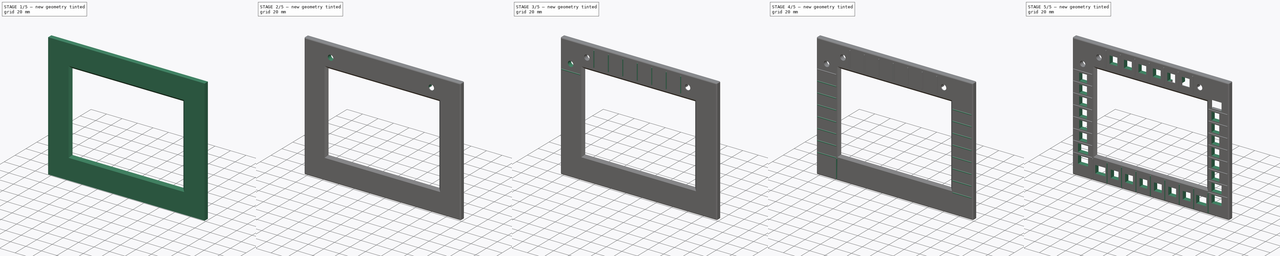
[diagram: build sequence overview — one tinted view per stage of 5, left to right]
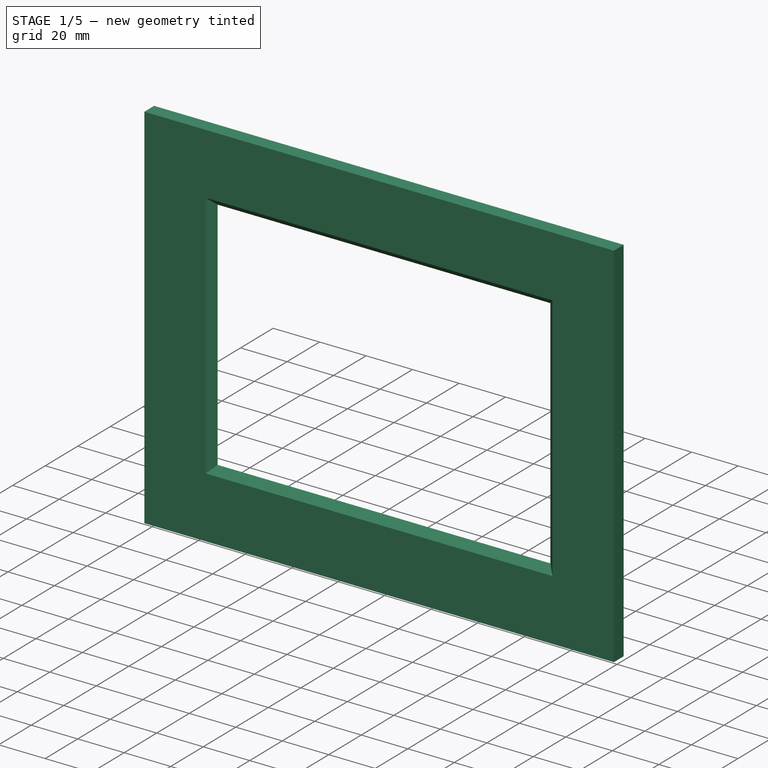
[diagram: stage 1 of 5 — iso view after this stage's code; geometry added in this stage tinted green]
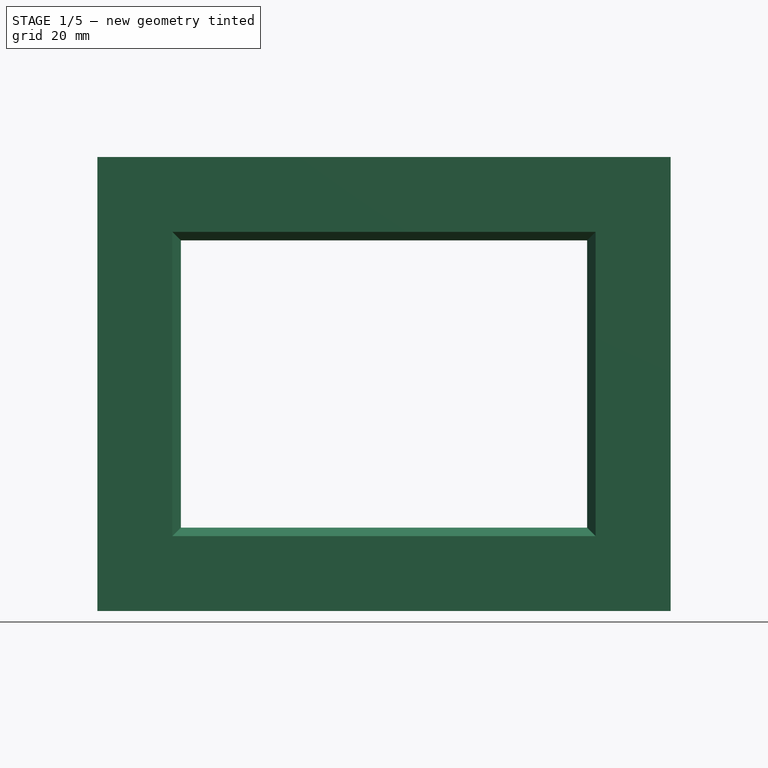
[diagram: stage 1 of 5 — front view after this stage's code; geometry added in this stage tinted green]
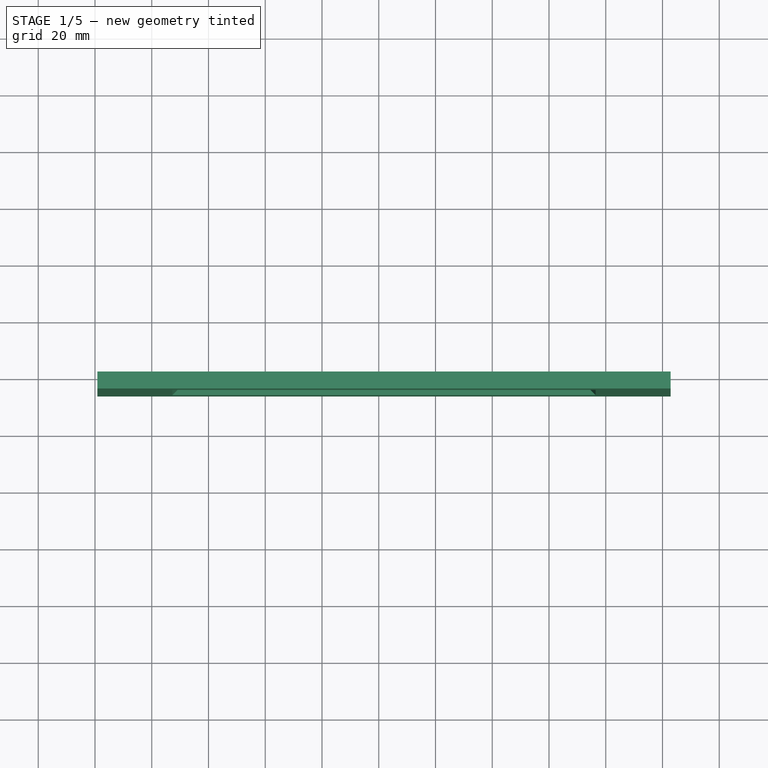
[diagram: stage 1 of 5 — top view after this stage's code; geometry added in this stage tinted green]
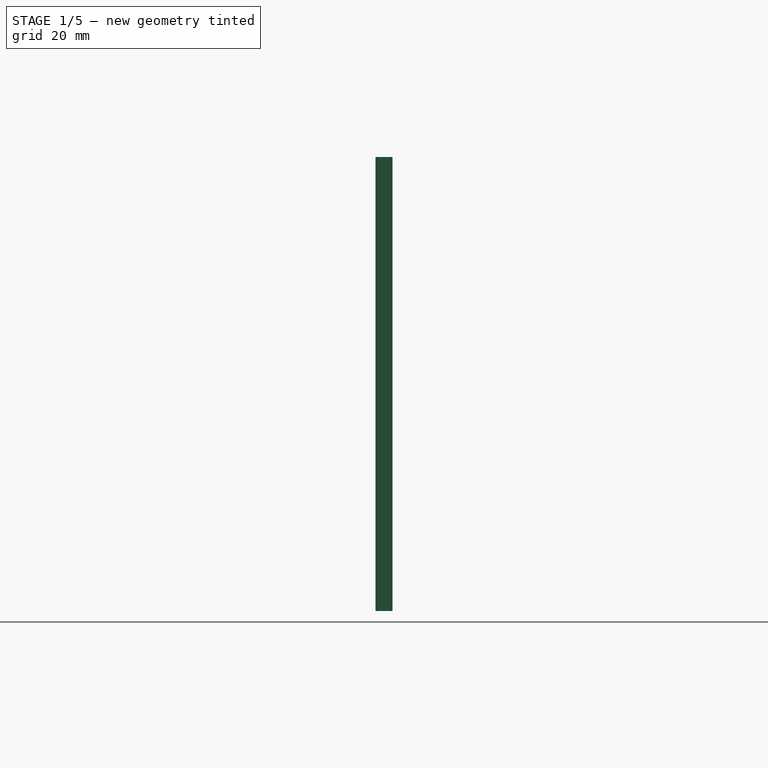
[diagram: stage 1 of 5 — right view after this stage's code; geometry added in this stage tinted green]
FCSTD DOCUMENT  (FreeCAD 0.21R33771 (Git))
Label: iteration2
License: All rights reserved
LicenseURL: http://en.wikipedia.org/wiki/All_rights_reserved
objects: Sketcher::SketchObject×16, PartDesign::Pocket×9, PartDesign::Fillet×6, PartDesign::Pad×5, PartDesign::LinearPattern×4, PartDesign::Hole×2, PartDesign::Chamfer×1, PartDesign::Mirrored×1, PartDesign::Body×1, App::MeasureDistance×1
note: 68 computed .brp shape members not serialized (recipe doc carries the construction recipe); baked Part::Feature solids carry a one-line shape summary decoded from their .brp

FEATURE [Sketcher::SketchObject] Sketch  label="bezel-front"
  FullyConstrained = true
  MapMode = 5
  Placement = pos=(0,0,0) rot=(1,0,0;1.5708rad)
  Support = -> [XZ_Plane]
  sketch-geometry (12):
    g0: LineSegment StartX=-69.1431 StartY=50.8022 StartZ=0 EndX=72.8569 EndY=50.8022 EndZ=0
    g1: LineSegment StartX=72.8569 StartY=50.8022 StartZ=0 EndX=72.8569 EndY=-49.1978 EndZ=0
    g2: LineSegment StartX=72.8569 StartY=-49.1978 StartZ=0 EndX=-69.1431 EndY=-49.1978 EndZ=0
    g3: LineSegment StartX=-69.1431 StartY=-49.1978 StartZ=0 EndX=-69.1431 EndY=50.8022 EndZ=0
    g4: LineSegment StartX=-99.1431 StartY=80.8022 StartZ=0 EndX=102.857 EndY=80.8022 EndZ=0
    g5: LineSegment StartX=102.857 StartY=80.8022 StartZ=0 EndX=102.857 EndY=-79.1978 EndZ=0
    g6: LineSegment StartX=102.857 StartY=-79.1978 StartZ=0 EndX=-99.1431 EndY=-79.1978 EndZ=0
    g7: LineSegment StartX=-99.1431 StartY=-79.1978 StartZ=0 EndX=-99.1431 EndY=80.8022 EndZ=0
    g8: LineSegment StartX=72.8569 StartY=8.66214 StartZ=0 EndX=102.857 EndY=8.66214 EndZ=0
    g9: LineSegment StartX=-69.1431 StartY=9.21008 StartZ=0 EndX=-99.1431 EndY=9.21008 EndZ=0
    g10: LineSegment StartX=1.95892 StartY=50.8022 StartZ=0 EndX=1.95892 EndY=80.8022 EndZ=0
    g11: LineSegment StartX=1.78155 StartY=-49.1978 StartZ=0 EndX=1.78155 EndY=-79.1978 EndZ=0
  constraints (40):
    c: Coincident(g0,g1)
    c: Coincident(g1,g2)
    c: Coincident(g2,g3)
    c: Coincident(g3,g0)
    c: Horizontal(g0)
    c: Horizontal(g2)
    c: Vertical(g1)
    c: Vertical(g3)
    c: DistanceX(g0,g0) = 142
    c: Distance(g-1,g0) = 85.8
    c: Distance(g-1,g0) = 88.82
    c: DistanceY(g1,g1) = 100
    c: Coincident(g4,g5)
    c: Coincident(g5,g6)
    c: Coincident(g6,g7)
    c: Coincident(g7,g4)
    c: Horizontal(g4)
    c: Horizontal(g6)
    c: Vertical(g5)
    c: Vertical(g7)
    c: PointOnObject(g8,g1)
    c: PointOnObject(g8,g5)
    c: Horizontal(g8)
    c: DistanceX(g8,g8) = 30
    c: PointOnObject(g9,g3)
    c: PointOnObject(g9,g7)
    c: Horizontal(g9)
    c: DistanceX(g9,g9) = 30
    c: PointOnObject(g10,g0)
    c: PointOnObject(g10,g4)
    c: Vertical(g10)
    c: PointOnObject(g11,g2)
    c: PointOnObject(g11,g6)
    c: Vertical(g11)
    c: DistanceY(g10,g10) = 30
    c: DistanceY(g11,g11) = 30
    c: Distance(g-1,g8) = 73.37
    c: Distance(g-1,g9) = 99.57
    c: Distance(g-1,g10) = 50.84
    c: Distance(g-1,g11) = 49.23
FEATURE [PartDesign::Pad] Pad  label="BezelFront"
  Direction = (0,-1,2e-16)
  Length = 6
  Length2 = 10
  Placement = pos=(0,0,0) rot=(1,0,0;1.5708rad)
  Profile = -> Sketch
  ReferenceAxis = -> Sketch [N_Axis]
  Type = 0
FEATURE [Sketcher::SketchObject] Sketch001  label="lcdinset"
  FullyConstrained = true
  MapMode = 5
  Placement = pos=(0,0,0) rot=(-1,0,0;1.5708rad)
  Support = -> [Pad]
  sketch-geometry (4):
    g0: LineSegment StartX=78 StartY=-59.5 StartZ=0 EndX=-78 EndY=-59.5 EndZ=0
    g1: LineSegment StartX=78 StartY=59.5 StartZ=0 EndX=78 EndY=-59.5 EndZ=0
    g2: LineSegment StartX=-78 StartY=-59.5 StartZ=0 EndX=-78 EndY=59.5 EndZ=0
    g3: LineSegment StartX=-78 StartY=59.5 StartZ=0 EndX=78 EndY=59.5 EndZ=0
  constraints (11):
    c: Coincident(g1,g0)
    c: Horizontal(g0)
    c: Vertical(g1)
    c: Symmetric(g0,g1,g-1)
    c: DistanceX(g0,g0) = 156
    c: Coincident(g2,g0)
    c: Vertical(g2)
    c: DistanceY(g2,g2) = 119
    c: Coincident(g3,g2)
    c: Coincident(g3,g1)
    c: Horizontal(g3)
FEATURE [Sketcher::SketchObject] Sketch002  label="lcdRibbonInset"
  FullyConstrained = true
  MapMode = 5
  Placement = pos=(0,0,0) rot=(-1,0,0;1.5708rad)
  sketch-geometry (5):
    g0: LineSegment StartX=25.97 StartY=-59.66 StartZ=0 EndX=65.97 EndY=-59.66 EndZ=0
    g1: LineSegment StartX=65.97 StartY=-59.66 StartZ=0 EndX=65.97 EndY=-64.66 EndZ=0
    g2: LineSegment StartX=65.97 StartY=-64.66 StartZ=0 EndX=25.97 EndY=-64.66 EndZ=0
    g3: LineSegment StartX=25.97 StartY=-64.66 StartZ=0 EndX=25.97 EndY=-59.66 EndZ=0
    g4: LineSegment StartX=77.97 StartY=-59.66 StartZ=0 EndX=65.97 EndY=-59.66 EndZ=0
  constraints (16):
    c: Coincident(g0,g1)
    c: Coincident(g1,g2)
    c: Coincident(g2,g3)
    c: Coincident(g3,g0)
    c: Horizontal(g0)
    c: Horizontal(g2)
    c: Vertical(g1)
    c: Vertical(g3)
    c: DistanceX(g2,g2) = 40
    c: DistanceY(g3,g3) = 5
    c: PointOnObject(g4,g0)
    c: Horizontal(g4)
    c: PointOnObject(g4,g1)
    c: DistanceX(g4,g4) = 12
    c: DistanceY(g-1,g4) = -59.66
    c: DistanceX(g-2,g0) = 65.97
FEATURE [Sketcher::SketchObject] Sketch003  label="backlightinset"
  FullyConstrained = true
  MapMode = 5
  Placement = pos=(0,0,0) rot=(-1,0,0;1.5708rad)
  sketch-geometry (4):
    g0: LineSegment StartX=78.03 StartY=-59.49 StartZ=0 EndX=92.03 EndY=-59.49 EndZ=0
    g1: LineSegment StartX=92.03 StartY=-59.49 StartZ=0 EndX=92.03 EndY=-44.49 EndZ=0
    g2: LineSegment StartX=92.03 StartY=-44.49 StartZ=0 EndX=78.03 EndY=-44.49 EndZ=0
    g3: LineSegment StartX=78.03 StartY=-44.49 StartZ=0 EndX=78.03 EndY=-59.49 EndZ=0
  constraints (12):
    c: Coincident(g0,g1)
    c: Coincident(g1,g2)
    c: Coincident(g2,g3)
    c: Coincident(g3,g0)
    c: Horizontal(g0)
    c: Horizontal(g2)
    c: Vertical(g1)
    c: Vertical(g3)
    c: DistanceY(g1,g1) = 15
    c: DistanceX(g0,g0) = 14
    c: DistanceX(g-2,g0) = 78.03
    c: DistanceY(g-1,g2) = -44.49
FEATURE [PartDesign::Pocket] Pocket  label="RibbonInset"
  BaseFeature = -> Pad
  Direction = (0,-1,2e-16)
  Length = 5
  Length2 = 5
  Placement = pos=(0,0,0) rot=(1,0,0;1.5708rad)
  Profile = -> Sketch002
  ReferenceAxis = -> Sketch002 [N_Axis]
  Type = 0
FEATURE [PartDesign::Pocket] Pocket001  label="BacklightInset"
  BaseFeature = -> Pocket
  Direction = (0,-1,2e-16)
  Length = 5
  Length2 = 5
  Placement = pos=(0,0,0) rot=(1,0,0;1.5708rad)
  Profile = -> Sketch003
  ReferenceAxis = -> Sketch003 [N_Axis]
  Type = 0
FEATURE [PartDesign::Chamfer] Chamfer
  Angle = 45
  Base = -> Pocket001 [Edge28,Edge27,Edge26,Edge25]
  BaseFeature = -> Pocket001
  ChamferType = 0
  FlipDirection = false
  Placement = pos=(0,0,0) rot=(1,0,0;1.5708rad)
  Size = 3.6
  Size2 = 1
  SupportTransform = false
  UseAllEdges = false
FEATURE [PartDesign::Pocket] Pocket002  label="LCDInset"
  BaseFeature = -> Chamfer
  Direction = (0,-1,4e-16)
  Length = 3
  Length2 = 5
  Placement = pos=(0,0,0) rot=(1,0,0;1.5708rad)
  Profile = -> Sketch001
  ReferenceAxis = -> Sketch001 [N_Axis]
  Type = 0
FEATURE [Sketcher::SketchObject] Sketch004
  FullyConstrained = true
  MapMode = 5
  Placement = pos=(0,3.3e-14,59.5) rot=(1,0,0;3.14159rad)
  Support = -> [Pocket002]
  sketch-geometry (4):
    g0: LineSegment StartX=26.17 StartY=3.89 StartZ=0 EndX=65.93 EndY=3.89 EndZ=0
    g1: LineSegment StartX=65.93 StartY=3.89 StartZ=0 EndX=65.93 EndY=0 EndZ=0
    g2: LineSegment StartX=65.93 StartY=0 StartZ=0 EndX=26.17 EndY=0 EndZ=0
    g3: LineSegment StartX=26.17 StartY=0 StartZ=0 EndX=26.17 EndY=3.89 EndZ=0
  constraints (12):
    c: Coincident(g0,g1)
    c: Coincident(g1,g2)
    c: Coincident(g2,g3)
    c: Coincident(g3,g0)
    c: Horizontal(g0)
    c: Horizontal(g2)
    c: Vertical(g1)
    c: Vertical(g3)
    c: PointOnObject(g1,g-1)
    c: DistanceX(g-2,g1) = 65.93
    c: DistanceX(g2,g2) = 39.76
    c: DistanceY(g3,g3) = 3.89
FEATURE [PartDesign::Pocket] Pocket003  label="cable-fix"
  BaseFeature = -> Pocket002
  Direction = (0,6e-16,1)
  Length = 1
  Length2 = 5
  Placement = pos=(0,0,0) rot=(1,0,0;1.5708rad)
  Profile = -> Sketch004
  ReferenceAxis = -> Sketch004 [N_Axis]
  Type = 0
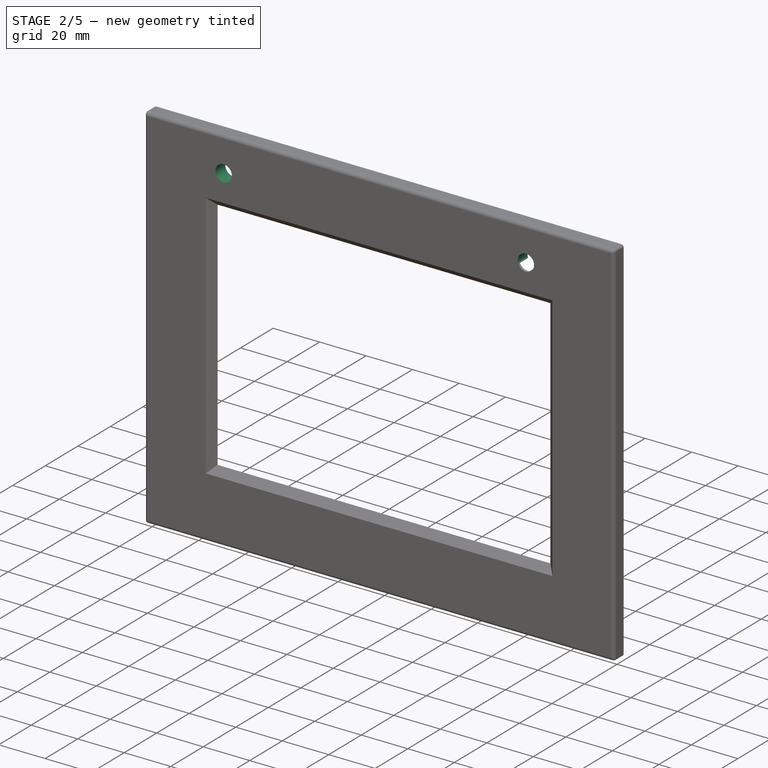
[diagram: stage 2 of 5 — iso view after this stage's code; geometry added in this stage tinted green]
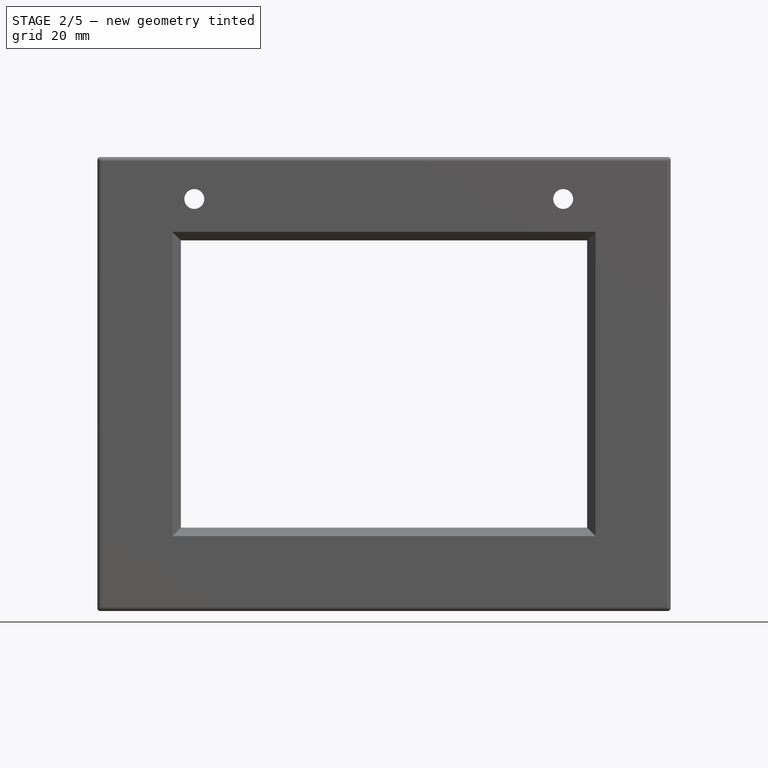
[diagram: stage 2 of 5 — front view after this stage's code; geometry added in this stage tinted green]
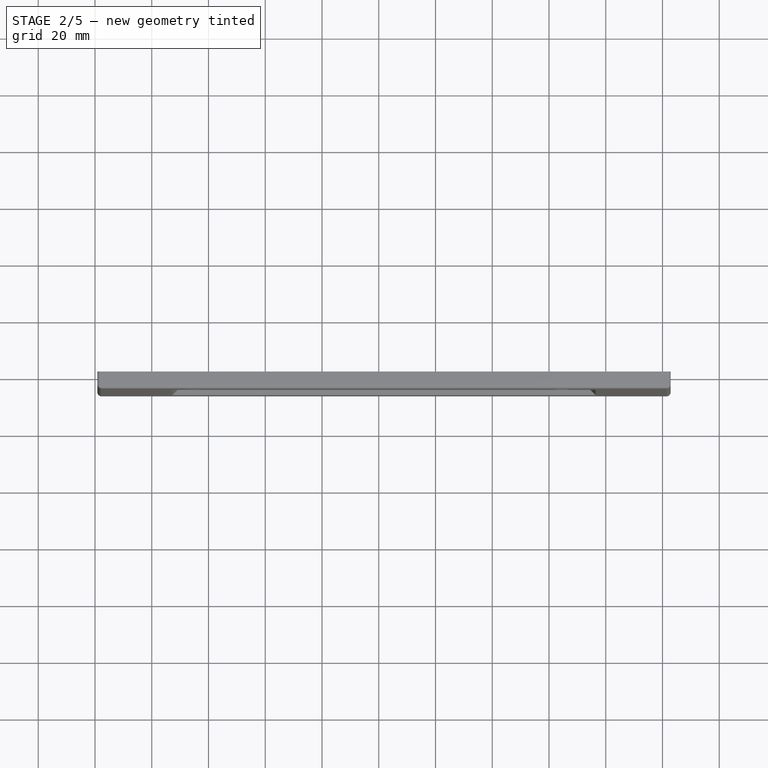
[diagram: stage 2 of 5 — top view after this stage's code; geometry added in this stage tinted green]
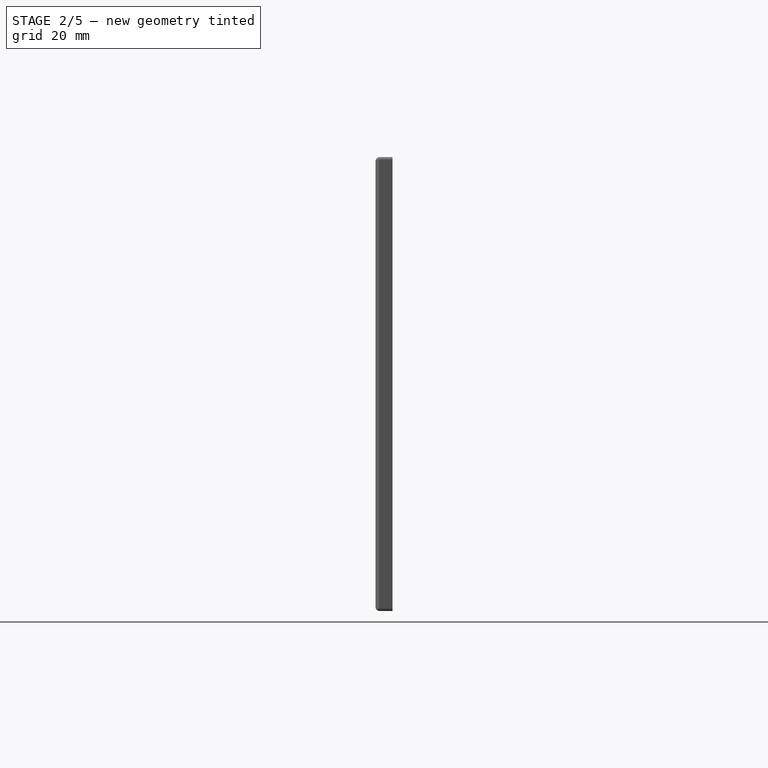
[diagram: stage 2 of 5 — right view after this stage's code; geometry added in this stage tinted green]
FEATURE [Sketcher::SketchObject] Sketch005
  FullyConstrained = true
  MapMode = 5
  Placement = pos=(78,0,0) rot=(0.707107,0,-0.707107;3.14159rad)
  Support = -> [Pocket003]
  sketch-geometry (4):
    g0: LineSegment StartX=-44.47 StartY=3 StartZ=0 EndX=-59.47 EndY=3 EndZ=0
    g1: LineSegment StartX=-59.47 StartY=3 StartZ=0 EndX=-59.47 EndY=0 EndZ=0
    g2: LineSegment StartX=-59.47 StartY=0 StartZ=0 EndX=-44.47 EndY=0 EndZ=0
    g3: LineSegment StartX=-44.47 StartY=0 StartZ=0 EndX=-44.47 EndY=3 EndZ=0
  constraints (12):
    c: Coincident(g0,g1)
    c: Coincident(g1,g2)
    c: Coincident(g2,g3)
    c: Coincident(g3,g0)
    c: Horizontal(g0)
    c: Horizontal(g2)
    c: Vertical(g1)
    c: Vertical(g3)
    c: PointOnObject(g1,g-1)
    c: DistanceY(g3,g3) = 3
    c: DistanceX(g2,g2) = 15
    c: DistanceX(g-2,g2) = -44.47
FEATURE [PartDesign::Pocket] Pocket004  label="cable-fix001"
  BaseFeature = -> Pocket003
  Direction = (1,0,2e-16)
  Length = 1
  Length2 = 5
  Placement = pos=(0,0,0) rot=(1,0,0;1.5708rad)
  Profile = -> Sketch005
  ReferenceAxis = -> Sketch005 [N_Axis]
  Type = 0
FEATURE [PartDesign::Fillet] Fillet
  Base = -> Pocket004 [Edge8,Edge6,Edge5,Edge7]
  BaseFeature = -> Pocket004
  Placement = pos=(0,0,0) rot=(1,0,0;1.5708rad)
  Radius = 1.5
  SupportTransform = false
  UseAllEdges = false
FEATURE [PartDesign::Fillet] Fillet001
  Base = -> Fillet [Edge31,Edge28,Edge25,Edge27]
  BaseFeature = -> Fillet
  Placement = pos=(0,0,0) rot=(1,0,0;1.5708rad)
  Radius = 1
  SupportTransform = false
  UseAllEdges = false
FEATURE [Sketcher::SketchObject] Sketch006  label="knob1"
  FullyConstrained = true
  MapMode = 5
  Placement = pos=(0,-6,4.7e-15) rot=(1,0,0;1.5708rad)
  Support = -> [Fillet001]
  sketch-geometry (1):
    g0: Circle CenterX=-65 CenterY=66 CenterZ=0 NormalX=0 NormalY=0 NormalZ=1 AngleXU=0 Radius=1.5
  constraints (3):
    c: DistanceY(g-1,g0) = 66
    c: DistanceX(g-2,g0) = -65
    c: Diameter(g0) = 3
FEATURE [PartDesign::Hole] Hole  label="POT1"
  BaseFeature = -> Fillet001
  CustomThreadClearance = 0
  Depth = 25
  DepthType = 0
  Diameter = 7
  DrillForDepth = false
  DrillPoint = 1
  DrillPointAngle = 118
  HoleCutCountersinkAngle = 90
  HoleCutCustomValues = false
  HoleCutDepth = 0
  HoleCutDiameter = 6.1
  HoleCutType = 0
  ModelThread = false
  Placement = pos=(0,0,0) rot=(1,0,0;1.5708rad)
  Profile = -> Sketch006
  Tapered = false
  TaperedAngle = 90
  ThreadClass = 0
  ThreadDepth = 25
  ThreadDepthType = 0
  ThreadDirection = 0
  ThreadFit = 0
  ThreadSize = 0
  ThreadType = 0
  Threaded = false
  UseCustomThreadClearance = false
FEATURE [PartDesign::Mirrored] Mirrored  label="POT2"
  BaseFeature = -> Hole
  MirrorPlane = -> Sketch006 [V_Axis]
  Originals = -> [Hole]
  Placement = pos=(0,0,0) rot=(1,0,0;1.5708rad)
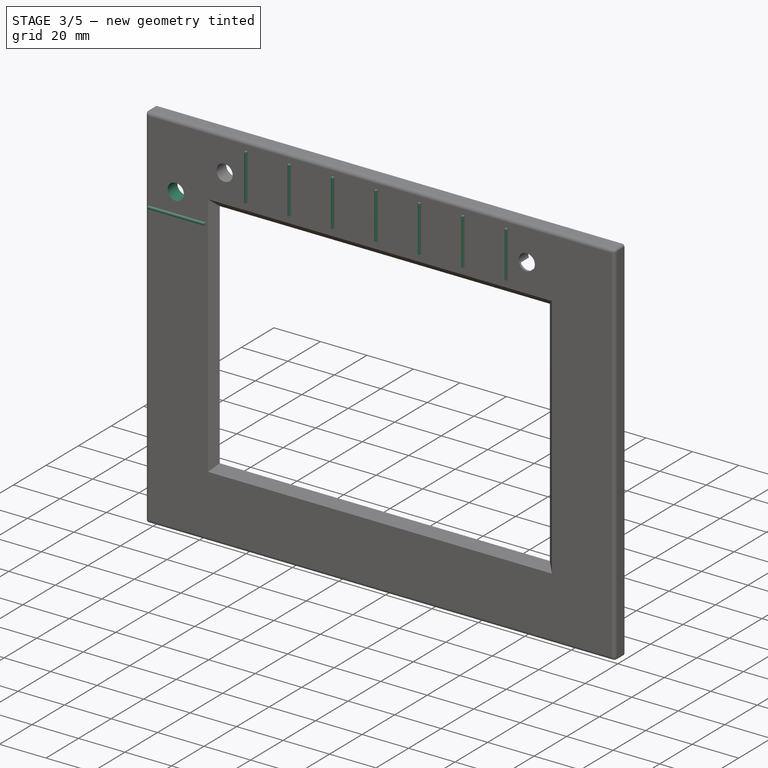
[diagram: stage 3 of 5 — iso view after this stage's code; geometry added in this stage tinted green]
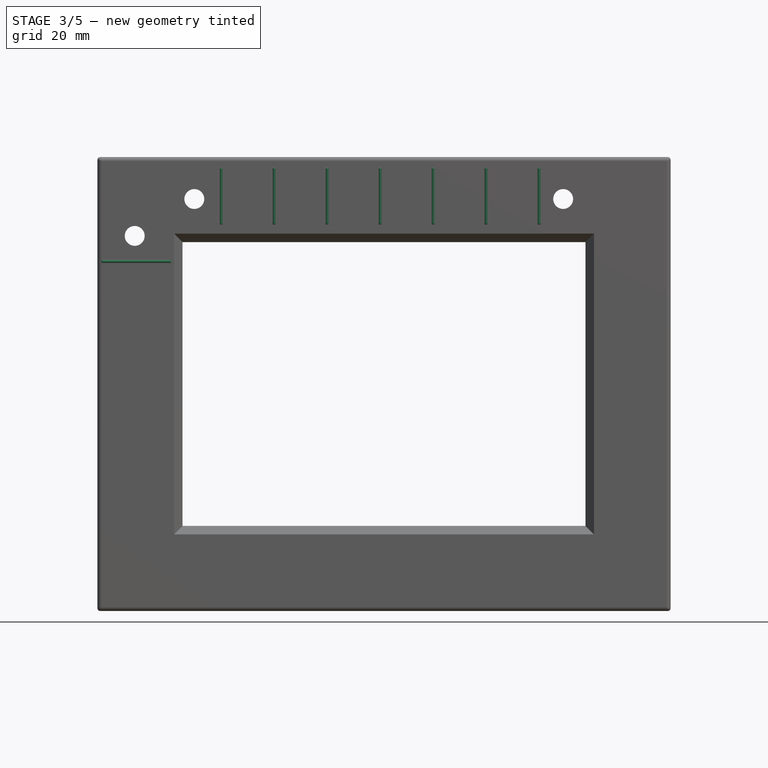
[diagram: stage 3 of 5 — front view after this stage's code; geometry added in this stage tinted green]
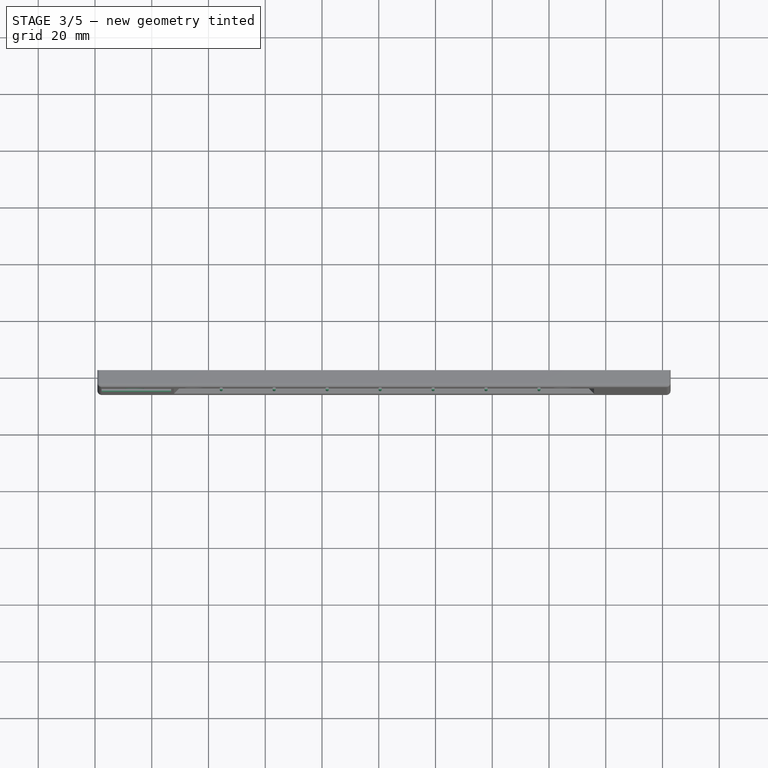
[diagram: stage 3 of 5 — top view after this stage's code; geometry added in this stage tinted green]
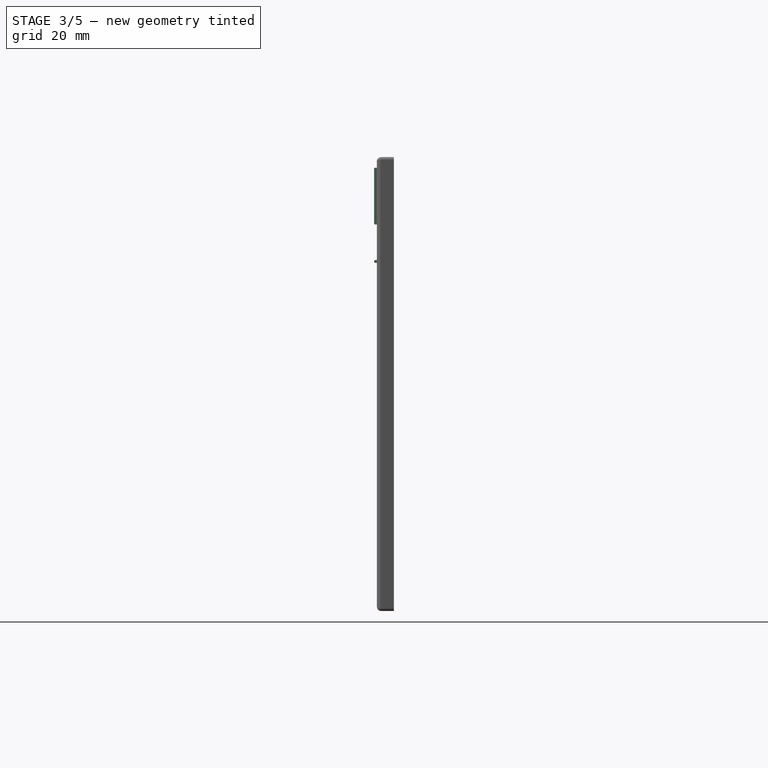
[diagram: stage 3 of 5 — right view after this stage's code; geometry added in this stage tinted green]
FEATURE [Sketcher::SketchObject] Sketch007  label="nubbin"
  FullyConstrained = true
  MapMode = 5
  Placement = pos=(0,-6,5.3e-15) rot=(1,0,0;1.5708rad)
  Support = -> [Mirrored]
  sketch-geometry (4):
    g0: LineSegment StartX=-56 StartY=77 StartZ=0 EndX=-55 EndY=77 EndZ=0
    g1: LineSegment StartX=-55 StartY=77 StartZ=0 EndX=-55 EndY=57 EndZ=0
    g2: LineSegment StartX=-55 StartY=57 StartZ=0 EndX=-56 EndY=57 EndZ=0
    g3: LineSegment StartX=-56 StartY=57 StartZ=0 EndX=-56 EndY=77 EndZ=0
  constraints (12):
    c: Coincident(g0,g1)
    c: Coincident(g1,g2)
    c: Coincident(g2,g3)
    c: Coincident(g3,g0)
    c: Horizontal(g0)
    c: Horizontal(g2)
    c: Vertical(g1)
    c: Vertical(g3)
    c: DistanceY(g3,g3) = 20
    c: DistanceX(g-2,g1) = -55
    c: DistanceX(g2,g2) = 1
    c: DistanceY(g-1,g1) = 57
FEATURE [PartDesign::Pad] Pad001  label="Nubbn"
  BaseFeature = -> Mirrored
  Direction = (0,-1,7e-16)
  Length = 1
  Length2 = 10
  Placement = pos=(0,0,0) rot=(1,0,0;1.5708rad)
  Profile = -> Sketch007
  ReferenceAxis = -> Sketch007 [N_Axis]
  Type = 0
FEATURE [PartDesign::Fillet] Fillet002  label="RoundingNubbin"
  Base = -> Pad001 [Edge71,Edge74,Edge69,Edge73]
  BaseFeature = -> Pad001
  Placement = pos=(0,0,0) rot=(1,0,0;1.5708rad)
  Radius = 0.4
  SupportTransform = false
  UseAllEdges = false
FEATURE [PartDesign::LinearPattern] LinearPattern  label="Top Row Nubbns"
  BaseFeature = -> Fillet002
  Direction = -> X_Axis
  Length = 112
  Occurrences = 7
  Originals = -> [Pad001,Fillet002]
  Placement = pos=(0,0,0) rot=(1,0,0;1.5708rad)
FEATURE [Sketcher::SketchObject] Sketch008  label="pot-top-left"
  FullyConstrained = true
  MapMode = 5
  Placement = pos=(0,-6,6e-15) rot=(1,0,0;1.5708rad)
  Support = -> [LinearPattern]
  sketch-geometry (1):
    g0: Circle CenterX=-86 CenterY=53 CenterZ=0 NormalX=0 NormalY=0 NormalZ=1 AngleXU=0 Radius=3.5
  constraints (3):
    c: Diameter(g0) = 7
    c: DistanceX(g-2,g0) = -86
    c: DistanceY(g-1,g0) = 53
FEATURE [PartDesign::Hole] Hole001  label="POT-Top Left"
  BaseFeature = -> LinearPattern
  CustomThreadClearance = 0
  Depth = 25
  DepthType = 0
  Diameter = 7
  DrillForDepth = false
  DrillPoint = 1
  DrillPointAngle = 118
  HoleCutCountersinkAngle = 90
  HoleCutCustomValues = false
  HoleCutDepth = 0
  HoleCutDiameter = 6.1
  HoleCutType = 0
  ModelThread = false
  Placement = pos=(0,0,0) rot=(1,0,0;1.5708rad)
  Profile = -> Sketch008
  Tapered = false
  TaperedAngle = 90
  ThreadClass = 0
  ThreadDepth = 25
  ThreadDepthType = 0
  ThreadDirection = 0
  ThreadFit = 0
  ThreadSize = 0
  ThreadType = 0
  Threaded = false
  UseCustomThreadClearance = false
FEATURE [Sketcher::SketchObject] Sketch009  label="side-nubbins"
  FullyConstrained = true
  MapMode = 5
  Placement = pos=(0,-6,6.6e-15) rot=(1,0,0;1.5708rad)
  Support = -> [Hole001]
  sketch-geometry (4):
    g0: LineSegment StartX=-97.65 StartY=44.5 StartZ=0 EndX=-73.15 EndY=44.5 EndZ=0
    g1: LineSegment StartX=-73.15 StartY=44.5 StartZ=0 EndX=-73.15 EndY=43.5 EndZ=0
    g2: LineSegment StartX=-73.15 StartY=43.5 StartZ=0 EndX=-97.65 EndY=43.5 EndZ=0
    g3: LineSegment StartX=-97.65 StartY=43.5 StartZ=0 EndX=-97.65 EndY=44.5 EndZ=0
  constraints (12):
    c: Coincident(g0,g1)
    c: Coincident(g1,g2)
    c: Coincident(g2,g3)
    c: Coincident(g3,g0)
    c: Horizontal(g0)
    c: Horizontal(g2)
    c: Vertical(g1)
    c: Vertical(g3)
    c: DistanceX(g2,g2) = 24.5
    c: DistanceY(g1,g1) = 1
    c: DistanceX(g-2,g1) = -73.15
    c: DistanceY(g-1,g0) = 44.5
FEATURE [PartDesign::Pad] Pad002  label="SideNubbin"
  BaseFeature = -> Hole001
  Direction = (0,-1,1.1e-15)
  Length = 1
  Length2 = 10
  Placement = pos=(0,0,0) rot=(1,0,0;1.5708rad)
  Profile = -> Sketch009
  ReferenceAxis = -> Sketch009 [N_Axis]
  Type = 0
FEATURE [PartDesign::Fillet] Fillet003  label="SideNubbnRounding"
  Base = -> Pad002 [Edge76,Edge81,Edge169,Edge78]
  BaseFeature = -> Pad002
  Placement = pos=(0,0,0) rot=(1,0,0;1.5708rad)
  Radius = 0.4
  SupportTransform = false
  UseAllEdges = false
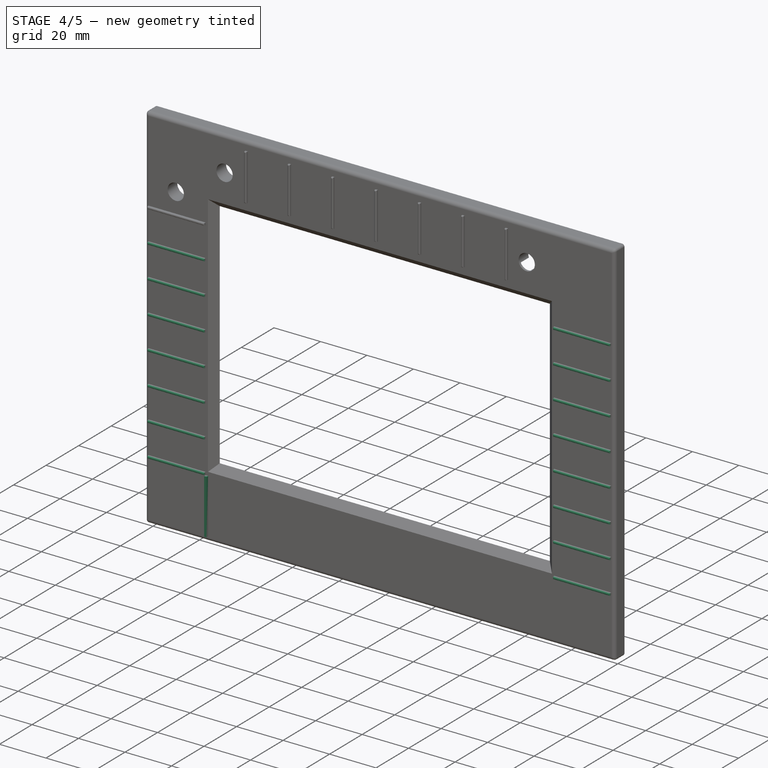
[diagram: stage 4 of 5 — iso view after this stage's code; geometry added in this stage tinted green]
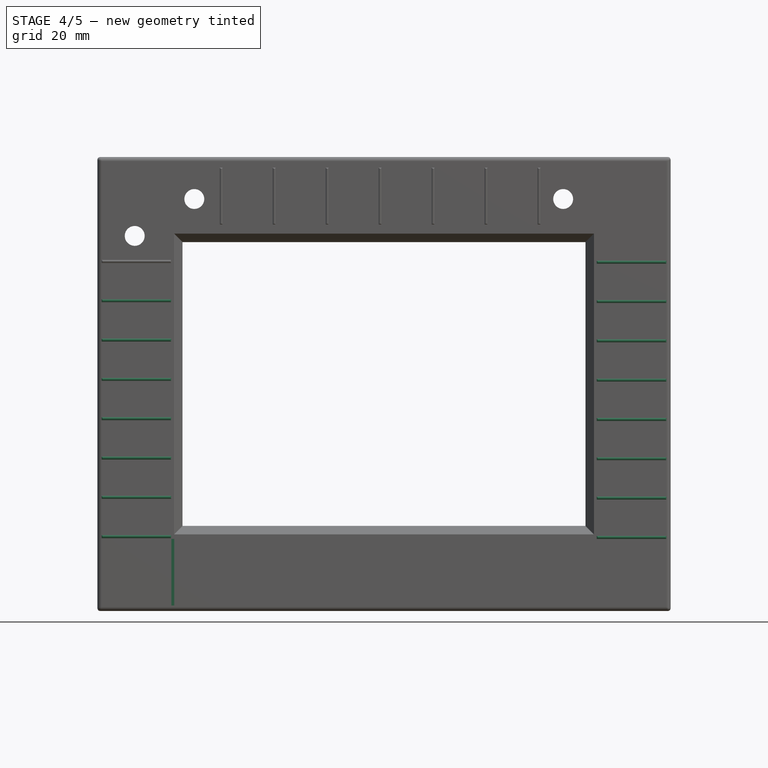
[diagram: stage 4 of 5 — front view after this stage's code; geometry added in this stage tinted green]
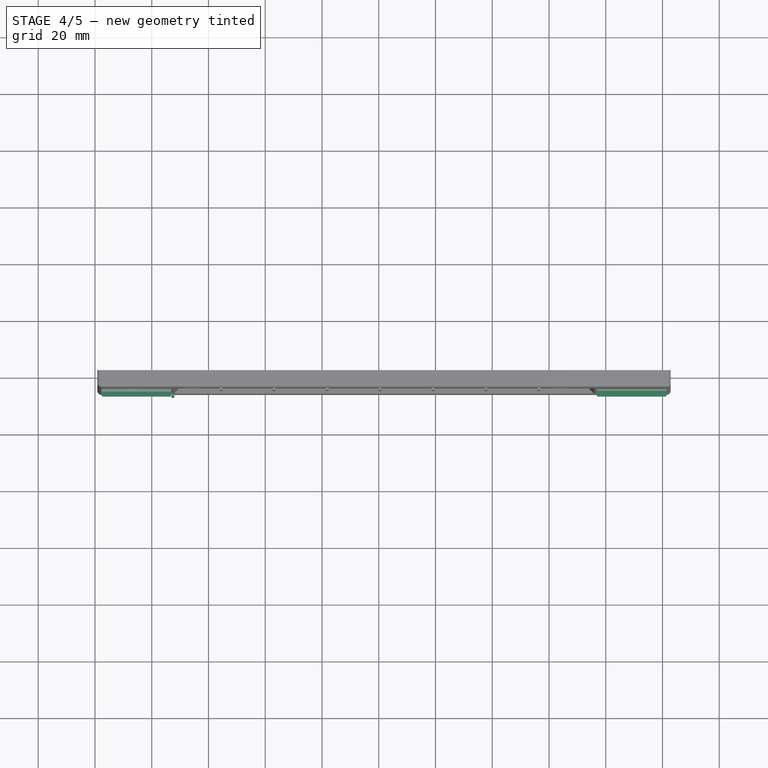
[diagram: stage 4 of 5 — top view after this stage's code; geometry added in this stage tinted green]
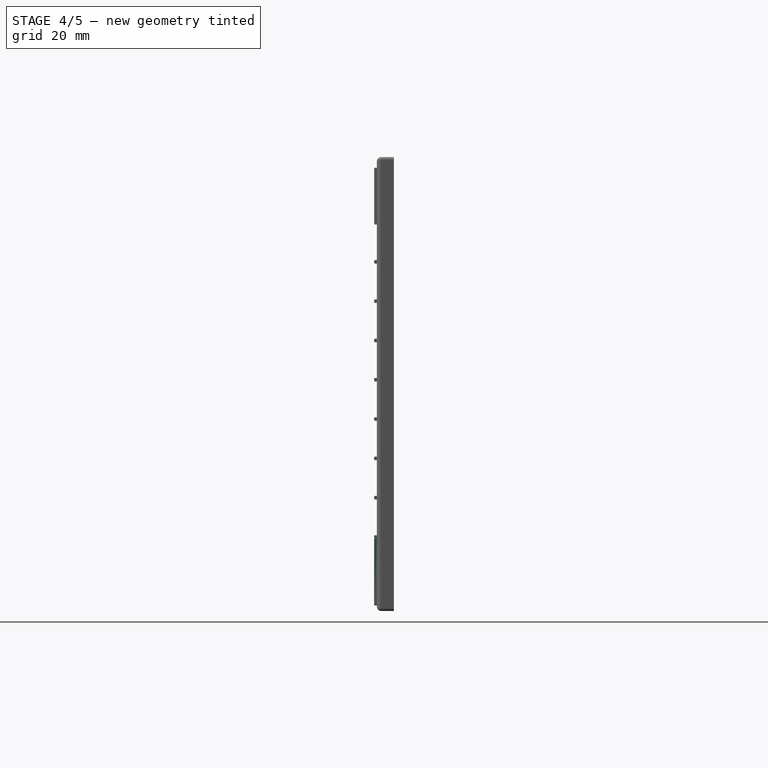
[diagram: stage 4 of 5 — right view after this stage's code; geometry added in this stage tinted green]
FEATURE [PartDesign::LinearPattern] LinearPattern001  label="SideNubbinLinear"
  BaseFeature = -> Fillet003
  Direction = -> Sketch009 [V_Axis]
  Length = 97
  Occurrences = 8
  Originals = -> [Pad002,Fillet003]
  Placement = pos=(0,0,0) rot=(1,0,0;1.5708rad)
  Reversed = true
FEATURE [Sketcher::SketchObject] Sketch010  label="r-side-nubbn"
  FullyConstrained = true
  MapMode = 5
  Placement = pos=(0,-6,7.3e-15) rot=(1,0,0;1.5708rad)
  Support = -> [LinearPattern001]
  sketch-geometry (4):
    g0: LineSegment StartX=76.86 StartY=43.24 StartZ=0 EndX=101.36 EndY=43.24 EndZ=0
    g1: LineSegment StartX=101.36 StartY=43.24 StartZ=0 EndX=101.36 EndY=44.24 EndZ=0
    g2: LineSegment StartX=101.36 StartY=44.24 StartZ=0 EndX=76.86 EndY=44.24 EndZ=0
    g3: LineSegment StartX=76.86 StartY=44.24 StartZ=0 EndX=76.86 EndY=43.24 EndZ=0
  constraints (12):
    c: Coincident(g0,g1)
    c: Coincident(g1,g2)
    c: Coincident(g2,g3)
    c: Coincident(g3,g0)
    c: Horizontal(g0)
    c: Horizontal(g2)
    c: Vertical(g1)
    c: Vertical(g3)
    c: DistanceX(g0,g0) = 24.5
    c: DistanceY(g1,g1) = 1
    c: DistanceY(g-1,g0) = 43.24
    c: DistanceX(g-2,g2) = 76.86
FEATURE [PartDesign::Pad] Pad003  label="R-Side Nubbn"
  BaseFeature = -> LinearPattern001
  Direction = (0,-1,1.1e-15)
  Length = 1
  Length2 = 10
  Placement = pos=(0,0,0) rot=(1,0,0;1.5708rad)
  Profile = -> Sketch010
  ReferenceAxis = -> Sketch010 [N_Axis]
  Type = 0
FEATURE [PartDesign::Fillet] Fillet004  label="R-Side Nubbin Rounding"
  Base = -> Pad003 [Edge182,Edge187,Edge346,Edge184]
  BaseFeature = -> Pad003
  Placement = pos=(0,0,0) rot=(1,0,0;1.5708rad)
  Radius = 0.4
  SupportTransform = false
  UseAllEdges = false
FEATURE [PartDesign::LinearPattern] LinearPattern002  label="R-Side Pattern"
  BaseFeature = -> Fillet004
  Direction = -> Sketch010 [V_Axis]
  Length = 97
  Occurrences = 8
  Originals = -> [Pad003,Fillet004]
  Placement = pos=(0,0,0) rot=(1,0,0;1.5708rad)
  Reversed = true
FEATURE [Sketcher::SketchObject] Sketch011  label="bottom-nubbins"
  FullyConstrained = true
  MapMode = 5
  Placement = pos=(0,-6,8e-15) rot=(1,0,0;1.5708rad)
  Support = -> [LinearPattern002]
  sketch-geometry (4):
    g0: LineSegment StartX=-73.07 StartY=-53.76 StartZ=0 EndX=-72.07 EndY=-53.76 EndZ=0
    g1: LineSegment StartX=-72.07 StartY=-53.76 StartZ=0 EndX=-72.07 EndY=-77.26 EndZ=0
    g2: LineSegment StartX=-72.07 StartY=-77.26 StartZ=0 EndX=-73.07 EndY=-77.26 EndZ=0
    g3: LineSegment StartX=-73.07 StartY=-77.26 StartZ=0 EndX=-73.07 EndY=-53.76 EndZ=0
  constraints (12):
    c: Coincident(g0,g1)
    c: Coincident(g1,g2)
    c: Coincident(g2,g3)
    c: Coincident(g3,g0)
    c: Horizontal(g0)
    c: Horizontal(g2)
    c: Vertical(g1)
    c: Vertical(g3)
    c: DistanceX(g2,g2) = 1
    c: DistanceY(g1,g1) = 23.5
    c: DistanceX(g-2,g1) = -72.07
    c: DistanceY(g-1,g0) = -53.76
FEATURE [PartDesign::Pad] Pad004  label="BottomNubbins"
  BaseFeature = -> LinearPattern002
  Direction = (0,-1,1.4e-15)
  Length = 1
  Length2 = 10
  Placement = pos=(0,0,0) rot=(1,0,0;1.5708rad)
  Profile = -> Sketch011
  ReferenceAxis = -> Sketch011 [N_Axis]
  Type = 0
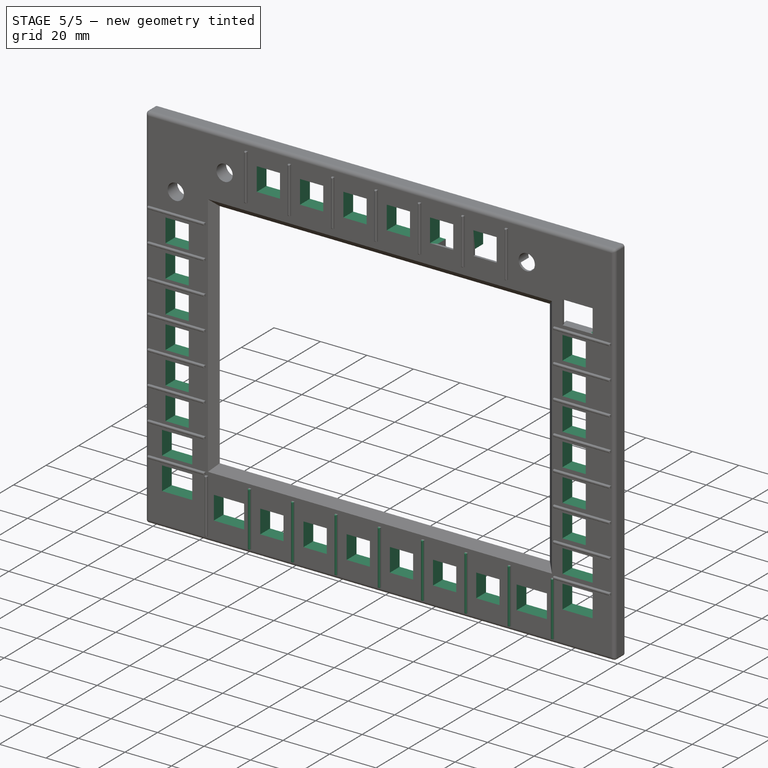
[diagram: stage 5 of 5 — iso view after this stage's code; geometry added in this stage tinted green]
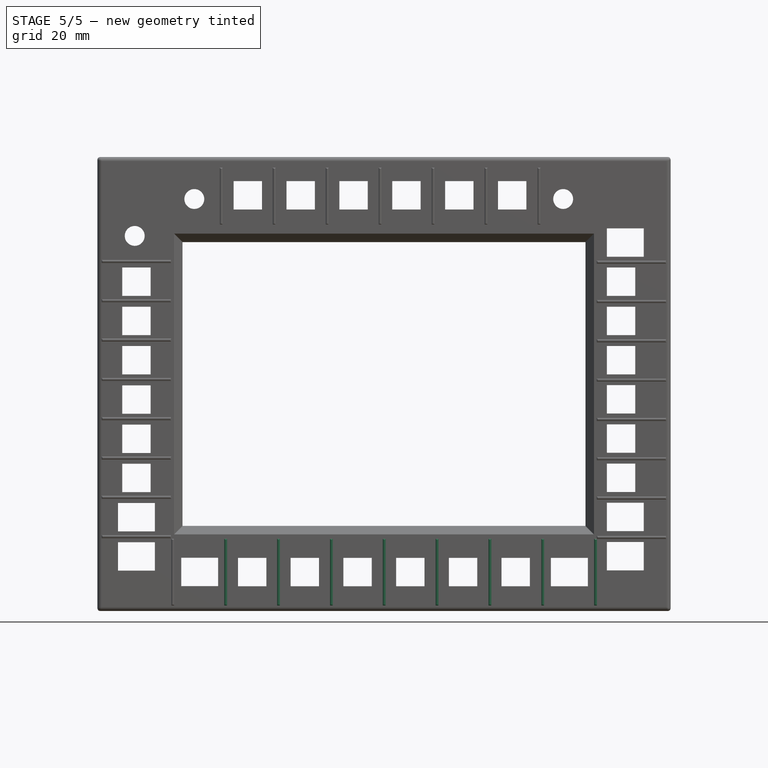
[diagram: stage 5 of 5 — front view after this stage's code; geometry added in this stage tinted green]
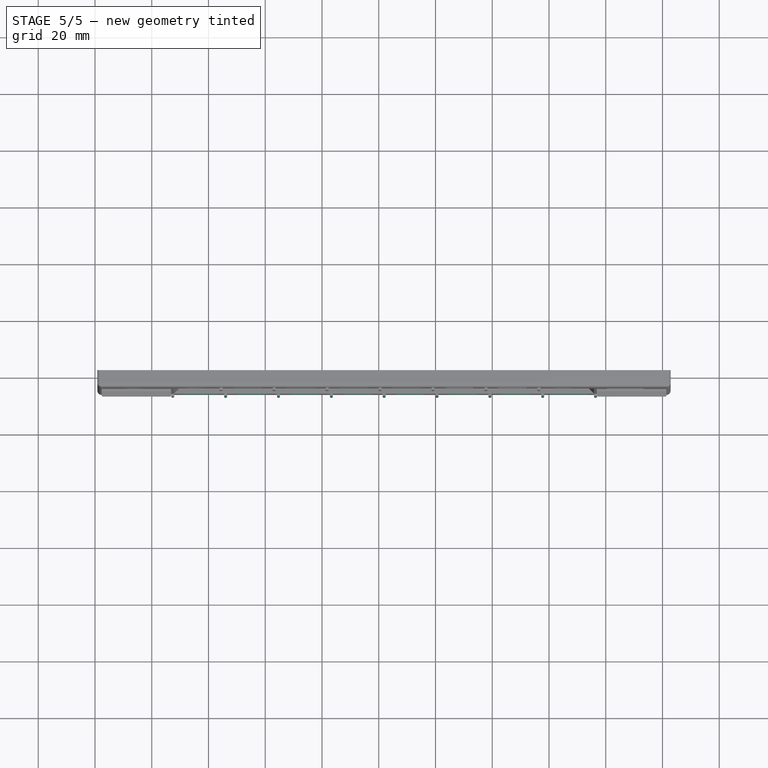
[diagram: stage 5 of 5 — top view after this stage's code; geometry added in this stage tinted green]
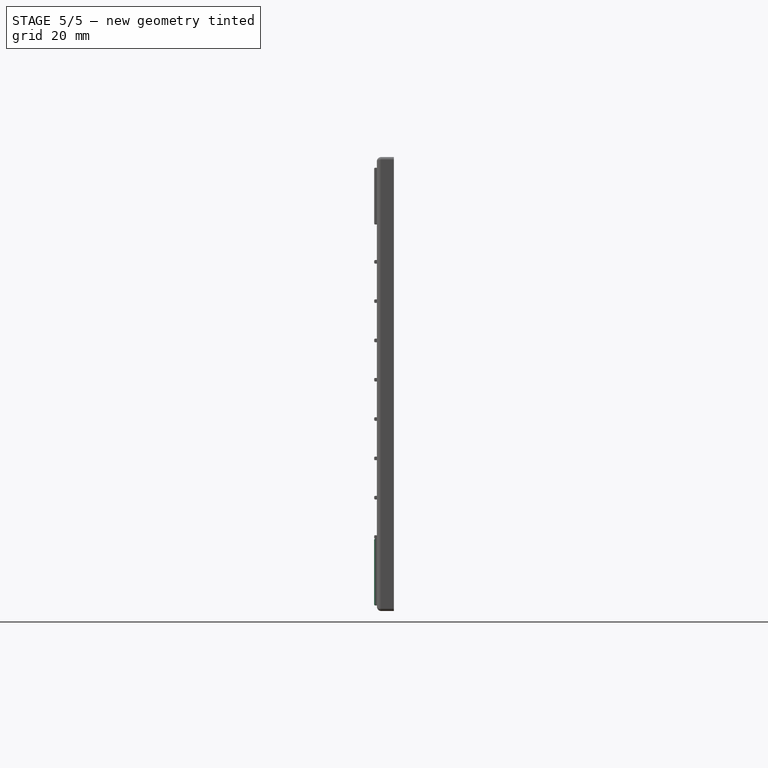
[diagram: stage 5 of 5 — right view after this stage's code; geometry added in this stage tinted green]
FEATURE [PartDesign::Fillet] Fillet005  label="Bottom Nubbins Rounding"
  Base = -> Pad004 [Edge297,Edge294,Edge292,Edge296]
  BaseFeature = -> Pad004
  Placement = pos=(0,0,0) rot=(1,0,0;1.5708rad)
  Radius = 0.4
  SupportTransform = false
  UseAllEdges = false
FEATURE [PartDesign::LinearPattern] LinearPattern003  label="BottomNubbins Pattern"
  BaseFeature = -> Fillet005
  Direction = -> X_Axis
  Length = 149
  Occurrences = 9
  Originals = -> [Pad004,Fillet005]
  Placement = pos=(0,0,0) rot=(1,0,0;1.5708rad)
FEATURE [Sketcher::SketchObject] Sketch012  label="bottom tsd a/c but"
  FullyConstrained = true
  MapMode = 5
  Placement = pos=(0,-6,8.6e-15) rot=(1,0,0;1.5708rad)
  Support = -> [LinearPattern003]
  sketch-geometry (4):
    g0: LineSegment StartX=-69.6 StartY=-60.45 StartZ=0 EndX=-56.6 EndY=-60.45 EndZ=0
    g1: LineSegment StartX=-56.6 StartY=-60.45 StartZ=0 EndX=-56.6 EndY=-70.45 EndZ=0
    g2: LineSegment StartX=-56.6 StartY=-70.45 StartZ=0 EndX=-69.6 EndY=-70.45 EndZ=0
    g3: LineSegment StartX=-69.6 StartY=-70.45 StartZ=0 EndX=-69.6 EndY=-60.45 EndZ=0
  constraints (12):
    c: Coincident(g0,g1)
    c: Coincident(g1,g2)
    c: Coincident(g2,g3)
    c: Coincident(g3,g0)
    c: Horizontal(g0)
    c: Horizontal(g2)
    c: Vertical(g1)
    c: Vertical(g3)
    c: DistanceX(g2,g2) = 13
    c: DistanceY(g1,g1) = 10
    c: DistanceX(g-2,g1) = -56.6
    c: DistanceY(g-1,g0) = -60.45
FEATURE [PartDesign::Pocket] Pocket005  label="TSC A/C But Bot"
  BaseFeature = -> LinearPattern003
  Direction = (0,1,-1.4e-15)
  Length = 5
  Length2 = 5
  Placement = pos=(0,0,0) rot=(1,0,0;1.5708rad)
  Profile = -> Sketch012
  ReferenceAxis = -> Sketch012 [N_Axis]
  Type = 1
FEATURE [Sketcher::SketchObject] Sketch013  label="bottom buts"
  FullyConstrained = false
  MapMode = 5
  Placement = pos=(0,-6,9.3e-15) rot=(1,0,0;1.5708rad)
  Support = -> [Pocket005]
  sketch-geometry (29):
    g0: LineSegment StartX=-49.61 StartY=-60.47 StartZ=0 EndX=-39.61 EndY=-60.47 EndZ=0
    g1: LineSegment StartX=-39.61 StartY=-60.47 StartZ=0 EndX=-39.61 EndY=-70.47 EndZ=0
    g2: LineSegment StartX=-39.61 StartY=-70.47 StartZ=0 EndX=-49.61 EndY=-70.47 EndZ=0
    g3: LineSegment StartX=-49.61 StartY=-70.47 StartZ=0 EndX=-49.61 EndY=-60.47 EndZ=0
    g4: LineSegment StartX=-39.61 StartY=-70.47 StartZ=0 EndX=-39.61 EndY=-60.47 EndZ=0
    g5: LineSegment StartX=-31.03 StartY=-70.47 StartZ=0 EndX=-21.03 EndY=-70.47 EndZ=0
    g6: LineSegment StartX=-21.03 StartY=-70.47 StartZ=0 EndX=-21.03 EndY=-60.47 EndZ=0
    g7: LineSegment StartX=-21.03 StartY=-60.47 StartZ=0 EndX=-31.03 EndY=-60.47 EndZ=0
    g8: LineSegment StartX=-31.03 StartY=-60.47 StartZ=0 EndX=-31.03 EndY=-70.47 EndZ=0
    g9: LineSegment StartX=-12.45 StartY=-70.47 StartZ=0 EndX=-2.45 EndY=-70.47 EndZ=0
    g10: LineSegment StartX=-2.45 StartY=-70.47 StartZ=0 EndX=-2.45 EndY=-60.47 EndZ=0
    g11: LineSegment StartX=-2.45 StartY=-60.47 StartZ=0 EndX=-12.45 EndY=-60.47 EndZ=0
    g12: LineSegment StartX=-12.45 StartY=-60.47 StartZ=0 EndX=-12.45 EndY=-70.47 EndZ=0
    g13: LineSegment StartX=6.13 StartY=-70.47 StartZ=0 EndX=16.13 EndY=-70.47 EndZ=0
    g14: LineSegment StartX=16.13 StartY=-70.47 StartZ=0 EndX=16.13 EndY=-60.47 EndZ=0
    g15: LineSegment StartX=16.13 StartY=-60.47 StartZ=0 EndX=6.13 EndY=-60.47 EndZ=0
    g16: LineSegment StartX=6.13 StartY=-60.47 StartZ=0 EndX=6.13 EndY=-70.47 EndZ=0
    g17: LineSegment StartX=24.71 StartY=-70.47 StartZ=0 EndX=34.71 EndY=-70.47 EndZ=0
    g18: LineSegment StartX=34.71 StartY=-70.47 StartZ=0 EndX=34.71 EndY=-60.47 EndZ=0
    g19: LineSegment StartX=34.71 StartY=-60.47 StartZ=0 EndX=24.71 EndY=-60.47 EndZ=0
    g20: LineSegment StartX=24.71 StartY=-60.47 StartZ=0 EndX=24.71 EndY=-70.47 EndZ=0
    g21: LineSegment StartX=43.29 StartY=-70.47 StartZ=0 EndX=53.29 EndY=-70.47 EndZ=0
    g22: LineSegment StartX=53.29 StartY=-70.47 StartZ=0 EndX=53.29 EndY=-60.47 EndZ=0
    g23: LineSegment StartX=53.29 StartY=-60.47 StartZ=0 EndX=43.29 EndY=-60.47 EndZ=0
    g24: LineSegment StartX=43.29 StartY=-60.47 StartZ=0 EndX=43.29 EndY=-70.47 EndZ=0
    g25: LineSegment StartX=60.69 StartY=-70.47 StartZ=0 EndX=73.69 EndY=-70.47 EndZ=0
    g26: LineSegment StartX=73.69 StartY=-70.47 StartZ=0 EndX=73.69 EndY=-60.47 EndZ=0
    g27: LineSegment StartX=73.69 StartY=-60.47 StartZ=0 EndX=60.69 EndY=-60.47 EndZ=0
    g28: LineSegment StartX=60.69 StartY=-60.47 StartZ=0 EndX=60.69 EndY=-70.47 EndZ=0
  constraints (85):
    c: Coincident(g0,g1)
    c: Coincident(g1,g2)
    c: Coincident(g2,g3)
    c: Coincident(g3,g0)
    c: Horizontal(g0)
    c: Horizontal(g2)
    c: Vertical(g1)
    c: Vertical(g3)
    c: DistanceX(g2,g2) = 10
    c: DistanceY(g1,g1) = 10
    c: DistanceY(g-1,g0) = -60.47
    c: DistanceX(g-2,g0) = -39.61
    c: Vertical(g4)
    c: Coincident(g5,g6)
    c: Coincident(g6,g7)
    c: Coincident(g7,g8)
    c: Coincident(g8,g5)
    c: Horizontal(g5)
    c: Horizontal(g7)
    c: Vertical(g6)
    c: Vertical(g8)
    c: DistanceX(g5,g5) = 10
    c: DistanceY(g6,g6) = 10
    c: DistanceX(g5,g9) = 8.58
    c: Coincident(g9,g10)
    c: Coincident(g10,g11)
    c: Coincident(g11,g12)
    c: Coincident(g12,g9)
    c: Horizontal(g9)
    c: Horizontal(g11)
    c: Vertical(g10)
    c: Vertical(g12)
    c: DistanceY(g10,g10) = 10
    c: DistanceX(g9,g9) = 10
    c: DistanceX(g9,g13) = 8.58
    c: Coincident(g13,g14)
    c: Coincident(g14,g15)
    c: Coincident(g15,g16)
    c: Coincident(g16,g13)
    c: Horizontal(g13)
    c: Horizontal(g15)
    c: Vertical(g14)
    c: Vertical(g16)
    c: DistanceX(g13,g13) = 10
    c: DistanceY(g16,g16) = 10
    c: DistanceX(g13,g17) = 8.58
    c: Coincident(g17,g18)
    c: Coincident(g18,g19)
    c: Coincident(g19,g20)
    c: Coincident(g20,g17)
    c: Horizontal(g17)
    c: Horizontal(g19)
    c: Vertical(g18)
    c: Vertical(g20)
    c: DistanceX(g17,g17) = 10
    c: DistanceY(g18,g18) = 10
    c: DistanceX(g17,g21) = 8.58
    c: Coincident(g21,g22)
    c: Coincident(g22,g23)
    c: Coincident(g23,g24)
    c: Coincident(g24,g21)
    c: Horizontal(g21)
    c: Horizontal(g23)
    c: Vertical(g22)
    c: Vertical(g24)
    c: DistanceX(g21,g21) = 10
    c: DistanceY(g22,g22) = 10
    c: Coincident(g25,g26)
    c: Coincident(g26,g27)
    c: Coincident(g27,g28)
    c: Coincident(g28,g25)
    c: Horizontal(g25)
    c: Horizontal(g27)
    c: Vertical(g26)
    c: Vertical(g28)
    c: DistanceX(g25,g25) = 13
    c: DistanceY(g26,g26) = 10
    c: Distance(g7,g0) = 8.58
    c: Distance(g25,g21) = 7.4
    c: DistanceY(g-1,g7) = -60.47
    c: DistanceY(g-1,g11) = -60.47
    c: DistanceY(g-1,g15) = -60.47
    c: DistanceY(g-1,g19) = -60.47
    c: DistanceY(g-1,g23) = -60.47
    c: DistanceY(g-1,g27) = -60.47
FEATURE [PartDesign::Pocket] Pocket006  label="Bottom Buttons"
  BaseFeature = -> Pocket005
  Direction = (0,1,-1.8e-15)
  Length = 5
  Length2 = 5
  Placement = pos=(0,0,0) rot=(1,0,0;1.5708rad)
  Profile = -> Sketch013
  ReferenceAxis = -> Sketch013 [N_Axis]
  Type = 1
FEATURE [Sketcher::SketchObject] Sketch014  label="Left-right Buttons"
  FullyConstrained = true
  MapMode = 5
  Placement = pos=(0,-6,1e-14) rot=(1,0,0;1.5708rad)
  Support = -> [Pocket006]
  sketch-geometry (86):
    g0: LineSegment StartX=-85.26 StartY=43.48 StartZ=0 EndX=-85.26 EndY=30.66 EndZ=0
    g1: LineSegment StartX=-80.39 StartY=36.87 StartZ=0 EndX=-73.14 EndY=36.87 EndZ=0
    g2: LineSegment StartX=-73.14 StartY=36.87 StartZ=0 EndX=-73.14 EndY=-53.1291 EndZ=0
    g3: LineSegment StartX=-90.39 StartY=41.85 StartZ=0 EndX=-80.39 EndY=41.85 EndZ=0
    g4: LineSegment StartX=-80.39 StartY=41.85 StartZ=0 EndX=-80.39 EndY=31.85 EndZ=0
    g5: LineSegment StartX=-80.39 StartY=31.85 StartZ=0 EndX=-90.39 EndY=31.85 EndZ=0
    g6: LineSegment StartX=-90.39 StartY=31.85 StartZ=0 EndX=-90.39 EndY=41.85 EndZ=0
    g7: LineSegment StartX=-90.39 StartY=28.03 StartZ=0 EndX=-80.39 EndY=28.03 EndZ=0
    g8: LineSegment StartX=-80.39 StartY=28.03 StartZ=0 EndX=-80.39 EndY=18.03 EndZ=0
    g9: LineSegment StartX=-80.39 StartY=18.03 StartZ=0 EndX=-90.39 EndY=18.03 EndZ=0
    g10: LineSegment StartX=-90.39 StartY=18.03 StartZ=0 EndX=-90.39 EndY=28.03 EndZ=0
    g11: LineSegment StartX=-90.39 StartY=14.21 StartZ=0 EndX=-80.39 EndY=14.21 EndZ=0
    g12: LineSegment StartX=-80.39 StartY=14.21 StartZ=0 EndX=-80.39 EndY=4.21 EndZ=0
    g13: LineSegment StartX=-80.39 StartY=4.21 StartZ=0 EndX=-90.39 EndY=4.21 EndZ=0
    g14: LineSegment StartX=-90.39 StartY=4.21 StartZ=0 EndX=-90.39 EndY=14.21 EndZ=0
    g15: LineSegment StartX=-90.39 StartY=0.32 StartZ=0 EndX=-80.39 EndY=0.32 EndZ=0
    g16: LineSegment StartX=-80.39 StartY=0.32 StartZ=0 EndX=-80.39 EndY=-9.68 EndZ=0
    g17: LineSegment StartX=-80.39 StartY=-9.68 StartZ=0 EndX=-90.39 EndY=-9.68 EndZ=0
    g18: LineSegment StartX=-90.39 StartY=-9.68 StartZ=0 EndX=-90.39 EndY=0.32 EndZ=0
    g19: LineSegment StartX=-90.39 StartY=-9.68 StartZ=0 EndX=-90.39 EndY=-13.5 EndZ=0
    g20: LineSegment StartX=-90.39 StartY=-13.5 StartZ=0 EndX=-80.39 EndY=-13.5 EndZ=0
    g21: LineSegment StartX=-80.39 StartY=-13.5 StartZ=0 EndX=-80.39 EndY=-23.5 EndZ=0
    g22: LineSegment StartX=-80.39 StartY=-23.5 StartZ=0 EndX=-90.39 EndY=-23.5 EndZ=0
    g23: LineSegment StartX=-90.39 StartY=-23.5 StartZ=0 EndX=-90.39 EndY=-13.5 EndZ=0
    g24: LineSegment StartX=-90.39 StartY=-23.5 StartZ=0 EndX=-90.39 EndY=-27.32 EndZ=0
    g25: LineSegment StartX=-78.89 StartY=-41.14 StartZ=0 EndX=-78.89 EndY=-51.14 EndZ=0
    g26: LineSegment StartX=-78.89 StartY=-51.14 StartZ=0 EndX=-91.89 EndY=-51.14 EndZ=0
    g27: LineSegment StartX=-91.89 StartY=-51.14 StartZ=0 EndX=-91.89 EndY=-41.14 EndZ=0
    g28: LineSegment StartX=-90.39 StartY=-27.32 StartZ=0 EndX=-80.39 EndY=-27.32 EndZ=0
    g29: LineSegment StartX=-80.39 StartY=-27.32 StartZ=0 EndX=-80.39 EndY=-37.32 EndZ=0
    g30: LineSegment StartX=-80.39 StartY=-37.32 StartZ=0 EndX=-90.39 EndY=-37.32 EndZ=0
    g31: LineSegment StartX=-90.39 StartY=-37.32 StartZ=0 EndX=-90.39 EndY=-27.32 EndZ=0
    g32: LineSegment StartX=-90.39 StartY=-37.32 StartZ=0 EndX=-90.39 EndY=-41.14 EndZ=0
    g33: LineSegment StartX=-90.39 StartY=-41.14 StartZ=0 EndX=-91.89 EndY=-41.14 EndZ=0
    g34: LineSegment StartX=-90.39 StartY=-41.14 StartZ=0 EndX=-78.89 EndY=-41.14 EndZ=0
    g35: LineSegment StartX=-91.89 StartY=-51.14 StartZ=0 EndX=-91.89 EndY=-54.96 EndZ=0
    g36: LineSegment StartX=-91.89 StartY=-54.96 StartZ=0 EndX=-78.89 EndY=-54.96 EndZ=0
    g37: LineSegment StartX=-78.89 StartY=-54.96 StartZ=0 EndX=-78.89 EndY=-64.96 EndZ=0
    g38: LineSegment StartX=-78.89 StartY=-64.96 StartZ=0 EndX=-91.89 EndY=-64.96 EndZ=0
    g39: LineSegment StartX=-91.89 StartY=-64.96 StartZ=0 EndX=-91.89 EndY=-54.96 EndZ=0
    g40: LineSegment StartX=80.39 StartY=41.85 StartZ=0 EndX=90.39 EndY=41.85 EndZ=0
    g41: LineSegment StartX=90.39 StartY=41.85 StartZ=0 EndX=90.39 EndY=31.85 EndZ=0
    g42: LineSegment StartX=90.39 StartY=31.85 StartZ=0 EndX=80.39 EndY=31.85 EndZ=0
    g43: LineSegment StartX=80.39 StartY=31.85 StartZ=0 EndX=80.39 EndY=41.85 EndZ=0
    g44: LineSegment StartX=-80.39 StartY=41.85 StartZ=0 EndX=80.39 EndY=41.85 EndZ=0
    g45: LineSegment StartX=80.39 StartY=31.85 StartZ=0 EndX=80.39 EndY=28.03 EndZ=0
    g46: LineSegment StartX=80.39 StartY=28.03 StartZ=0 EndX=90.39 EndY=28.03 EndZ=0
    g47: LineSegment StartX=90.39 StartY=28.03 StartZ=0 EndX=90.39 EndY=18.03 EndZ=0
    g48: LineSegment StartX=90.39 StartY=18.03 StartZ=0 EndX=80.39 EndY=18.03 EndZ=0
    g49: LineSegment StartX=80.39 StartY=18.03 StartZ=0 EndX=80.39 EndY=28.03 EndZ=0
    g50: LineSegment StartX=80.39 StartY=41.85 StartZ=0 EndX=80.39 EndY=45.67 EndZ=0
    g51: LineSegment StartX=80.39 StartY=45.67 StartZ=0 EndX=93.39 EndY=45.67 EndZ=0
    g52: LineSegment StartX=93.39 StartY=45.67 StartZ=0 EndX=93.39 EndY=55.67 EndZ=0
    g53: LineSegment StartX=93.39 StartY=55.67 StartZ=0 EndX=80.39 EndY=55.67 EndZ=0
    g54: LineSegment StartX=80.39 StartY=55.67 StartZ=0 EndX=80.39 EndY=45.67 EndZ=0
    g55: LineSegment StartX=80.39 StartY=18.03 StartZ=0 EndX=80.39 EndY=14.21 EndZ=0
    g56: LineSegment StartX=80.39 StartY=14.21 StartZ=0 EndX=90.39 EndY=14.21 EndZ=0
    g57: LineSegment StartX=90.39 StartY=14.21 StartZ=0 EndX=90.39 EndY=4.21 EndZ=0
    g58: LineSegment StartX=90.39 StartY=4.21 StartZ=0 EndX=80.39 EndY=4.21 EndZ=0
    g59: LineSegment StartX=80.39 StartY=4.21 StartZ=0 EndX=80.39 EndY=14.21 EndZ=0
    g60: LineSegment StartX=80.39 StartY=4.21 StartZ=0 EndX=80.39 EndY=0.39 EndZ=0
    g61: LineSegment StartX=80.39 StartY=0.39 StartZ=0 EndX=90.39 EndY=0.39 EndZ=0
    g62: LineSegment StartX=90.39 StartY=0.39 StartZ=0 EndX=90.39 EndY=-9.61 EndZ=0
    g63: LineSegment StartX=90.39 StartY=-9.61 StartZ=0 EndX=80.39 EndY=-9.61 EndZ=0
    g64: LineSegment StartX=80.39 StartY=-9.61 StartZ=0 EndX=80.39 EndY=0.39 EndZ=0
    g65: LineSegment StartX=80.39 StartY=-9.61 StartZ=0 EndX=80.39 EndY=-13.43 EndZ=0
    g66: LineSegment StartX=80.39 StartY=-13.43 StartZ=0 EndX=90.39 EndY=-13.43 EndZ=0
    g67: LineSegment StartX=90.39 StartY=-13.43 StartZ=0 EndX=90.39 EndY=-23.43 EndZ=0
    g68: LineSegment StartX=90.39 StartY=-23.43 StartZ=0 EndX=80.39 EndY=-23.43 EndZ=0
    g69: LineSegment StartX=80.39 StartY=-23.43 StartZ=0 EndX=80.39 EndY=-13.43 EndZ=0
    g70: LineSegment StartX=80.39 StartY=-23.43 StartZ=0 EndX=80.39 EndY=-27.25 EndZ=0
    g71: LineSegment StartX=80.39 StartY=-27.25 StartZ=0 EndX=90.39 EndY=-27.25 EndZ=0
    g72: LineSegment StartX=90.39 StartY=-27.25 StartZ=0 EndX=90.39 EndY=-37.25 EndZ=0
    g73: LineSegment StartX=90.39 StartY=-37.25 StartZ=0 EndX=80.39 EndY=-37.25 EndZ=0
    g74: LineSegment StartX=80.39 StartY=-37.25 StartZ=0 EndX=80.39 EndY=-27.25 EndZ=0
    g75: LineSegment StartX=80.39 StartY=-37.25 StartZ=0 EndX=80.39 EndY=-41.07 EndZ=0
    g76: LineSegment StartX=80.39 StartY=-41.07 StartZ=0 EndX=93.39 EndY=-41.07 EndZ=0
    g77: LineSegment StartX=93.39 StartY=-41.07 StartZ=0 EndX=93.39 EndY=-51.07 EndZ=0
    g78: LineSegment StartX=93.39 StartY=-51.07 StartZ=0 EndX=80.39 EndY=-51.07 EndZ=0
    g79: LineSegment StartX=80.39 StartY=-51.07 StartZ=0 EndX=80.39 EndY=-41.07 EndZ=0
    g80: LineSegment StartX=80.39 StartY=-51.07 StartZ=0 EndX=80.39 EndY=-54.89 EndZ=0
    g81: LineSegment StartX=80.39 StartY=-54.89 StartZ=0 EndX=93.39 EndY=-54.89 EndZ=0
    g82: LineSegment StartX=93.39 StartY=-54.89 StartZ=0 EndX=93.39 EndY=-64.89 EndZ=0
    g83: LineSegment StartX=93.39 StartY=-64.89 StartZ=0 EndX=80.39 EndY=-64.89 EndZ=0
    g84: LineSegment StartX=80.39 StartY=-64.89 StartZ=0 EndX=80.39 EndY=-54.89 EndZ=0
    g85: LineSegment StartX=90.39 StartY=28.03 StartZ=0 EndX=90.39 EndY=18.03 EndZ=0
  constraints (246):
    c: Vertical(g0)
    c: DistanceY(g0,g0) = 12.82
    c: Horizontal(g1)
    c: DistanceX(g1,g1) = 7.25
    c: DistanceX(g-2,g1) = -73.14
    c: Coincident(g2,g1)
    c: Vertical(g2)
    c: Distance(g-1,g2) = 90.4
    c: DistanceY(g-1,g1) = 36.87
    c: DistanceX(g-2,g0) = -85.26
    c: DistanceY(g-1,g0) = 43.48
    c: Coincident(g3,g4)
    c: Coincident(g4,g5)
    c: Coincident(g5,g6)
    c: Coincident(g6,g3)
    c: Horizontal(g3)
    c: Horizontal(g5)
    c: Vertical(g4)
    c: Vertical(g6)
    c: DistanceX(g5,g5) = 10
    c: DistanceY(g6,g6) = 10
    c: PointOnObject(g1,g4)
    c: DistanceY(g-1,g4) = 31.85
    c: Coincident(g7,g8)
    c: Coincident(g8,g9)
    c: Coincident(g9,g10)
    c: Coincident(g10,g7)
    c: Horizontal(g7)
    c: Horizontal(g9)
    c: Vertical(g8)
    c: Vertical(g10)
    c: DistanceX(g9,g9) = 10
    c: DistanceY(g8,g8) = 10
    c: DistanceX(g-2,g8) = -80.39
    c: DistanceY(g-1,g7) = 28.03
    c: Coincident(g11,g12)
    c: Coincident(g12,g13)
    c: Coincident(g13,g14)
    c: Coincident(g14,g11)
    c: Horizontal(g11)
    c: Horizontal(g13)
    c: Vertical(g12)
    c: Vertical(g14)
    c: DistanceY(g12,g12) = 10
    c: DistanceX(g13,g13) = 10
    c: DistanceY(g-1,g11) = 14.21
    c: DistanceX(g-2,g12) = -80.39
    c: Coincident(g15,g16)
    c: Coincident(g16,g17)
    c: Coincident(g17,g18)
    c: Coincident(g18,g15)
    c: Horizontal(g15)
    c: Horizontal(g17)
    c: Vertical(g16)
    c: Vertical(g18)
    c: DistanceY(g16,g16) = 10
    c: DistanceX(g17,g17) = 10
    c: DistanceY(g-1,g15) = 0.32
    c: DistanceX(g-2,g16) = -80.39
    c: Coincident(g19,g17)
    c: Vertical(g19)
    c: DistanceY(g19,g19) = 3.82
    c: Coincident(g20,g21)
    c: Coincident(g21,g22)
    c: Coincident(g22,g23)
    c: Coincident(g23,g20)
    c: Horizontal(g20)
    c: Horizontal(g22)
    c: Vertical(g21)
    c: Vertical(g23)
    c: Coincident(g20,g19)
    c: DistanceY(g23,g23) = 10
    c: DistanceX(g22,g22) = 10
    c: Coincident(g24,g22)
    c: Vertical(g24)
    c: DistanceY(g24,g24) = 3.82
    c: Coincident(g25,g26)
    c: Coincident(g26,g27)
    c: Horizontal(g26)
    c: Vertical(g25)
    c: Vertical(g27)
    c: DistanceY(g27,g27) = 10
    c: DistanceX(g26,g26) = 13
    c: Coincident(g28,g29)
    c: Coincident(g29,g30)
    c: Coincident(g30,g31)
    c: Coincident(g31,g28)
    c: Horizontal(g28)
    c: Horizontal(g30)
    c: Vertical(g29)
    c: Vertical(g31)
    c: Coincident(g28,g24)
    c: DistanceY(g29,g29) = 10
    c: DistanceX(g30,g30) = 10
    c: Coincident(g32,g30)
    c: Vertical(g32)
    c: DistanceY(g32,g32) = 3.82
    c: Coincident(g33,g32)
    c: Coincident(g33,g27)
    c: Horizontal(g33)
    c: Coincident(g34,g33)
    c: Coincident(g34,g25)
    c: Horizontal(g34)
    c: DistanceX(g33,g33) = 1.5
    c: Coincident(g35,g26)
    c: Vertical(g35)
    c: DistanceY(g35,g35) = 3.82
    c: Coincident(g36,g37)
    c: Coincident(g37,g38)
    c: Coincident(g38,g39)
    c: Coincident(g39,g36)
    c: Horizontal(g36)
    c: Horizontal(g38)
    c: Vertical(g37)
    c: Vertical(g39)
    c: Coincident(g36,g35)
    c: DistanceX(g38,g38) = 13
    c: DistanceY(g37,g37) = 10
    c: Coincident(g40,g41)
    c: Coincident(g41,g42)
    c: Coincident(g42,g43)
    c: Coincident(g43,g40)
    c: Horizontal(g40)
    c: Horizontal(g42)
    c: Vertical(g41)
    c: Vertical(g43)
    c: DistanceX(g42,g42) = 10
    c: DistanceY(g43,g43) = 10
    c: Coincident(g44,g3)
    c: Horizontal(g44)
    c: DistanceX(g44,g44) = 160.78
    c: Coincident(g40,g44)
    c: Coincident(g45,g42)
    c: Vertical(g45)
    c: DistanceY(g45,g45) = 3.82
    c: Coincident(g46,g47)
    c: Coincident(g47,g48)
    c: Coincident(g48,g49)
    c: Coincident(g49,g46)
    c: Horizontal(g46)
    c: Horizontal(g48)
    c: Vertical(g47)
    c: Vertical(g49)
    c: Coincident(g46,g45)
    c: DistanceY(g47,g47) = 10
    c: DistanceX(g48,g48) = 10
    c: Coincident(g50,g40)
    c: Vertical(g50)
    c: DistanceY(g50,g50) = 3.82
    c: Coincident(g51,g52)
    c: Coincident(g52,g53)
    c: Coincident(g53,g54)
    c: Coincident(g54,g51)
    c: Horizontal(g51)
    c: Horizontal(g53)
    c: Vertical(g52)
    c: Vertical(g54)
    c: Coincident(g51,g50)
    c: DistanceY(g52,g52) = 10
    c: DistanceX(g51,g51) = 13
    c: Coincident(g55,g48)
    c: Vertical(g55)
    c: DistanceY(g55,g55) = 3.82
    c: Coincident(g56,g57)
    c: Coincident(g57,g58)
    c: Coincident(g58,g59)
    c: Coincident(g59,g56)
    c: Horizontal(g56)
    c: Horizontal(g58)
    c: Vertical(g57)
    c: Vertical(g59)
    c: Coincident(g56,g55)
    c: DistanceY(g57,g57) = 10
    c: DistanceX(g58,g58) = 10
    c: Coincident(g60,g58)
    c: Vertical(g60)
    c: DistanceY(g60,g60) = 3.82
    c: Coincident(g61,g62)
    c: Coincident(g62,g63)
    c: Coincident(g63,g64)
    c: Coincident(g64,g61)
    c: Horizontal(g61)
    c: Horizontal(g63)
    c: Vertical(g62)
    c: Vertical(g64)
    c: Coincident(g61,g60)
    c: DistanceY(g62,g62) = 10
    c: DistanceX(g63,g63) = 10
    c: Coincident(g65,g63)
    c: Vertical(g65)
    c: DistanceY(g65,g65) = 3.82
    c: Coincident(g66,g67)
    c: Coincident(g67,g68)
    c: Coincident(g68,g69)
    c: Coincident(g69,g66)
    c: Horizontal(g66)
    c: Horizontal(g68)
    c: Vertical(g67)
    c: Vertical(g69)
    c: Coincident(g66,g65)
    c: DistanceY(g69,g69) = 10
    c: Coincident(g70,g68)
    c: Vertical(g70)
    c: DistanceY(g70,g70) = 3.82
    c: Coincident(g71,g72)
    c: Coincident(g72,g73)
    c: Coincident(g73,g74)
    c: Coincident(g74,g71)
    c: Horizontal(g71)
    c: Horizontal(g73)
    c: Vertical(g72)
    c: Vertical(g74)
    c: Coincident(g71,g70)
    c: DistanceY(g74,g74) = 10
    c: Coincident(g75,g73)
    c: Vertical(g75)
    c: DistanceY(g75,g75) = 3.82
    c: Coincident(g76,g77)
    c: Coincident(g77,g78)
    c: Coincident(g78,g79)
    c: Coincident(g79,g76)
    c: Horizontal(g76)
    c: Horizontal(g78)
    c: Vertical(g77)
    c: Vertical(g79)
    c: Coincident(g76,g75)
    c: DistanceY(g79,g79) = 10
    c: Coincident(g80,g78)
    c: Vertical(g80)
    c: DistanceY(g80,g80) = 3.82
    c: Coincident(g81,g82)
    c: Coincident(g82,g83)
    c: Coincident(g83,g84)
    c: Coincident(g84,g81)
    c: Horizontal(g81)
    c: Horizontal(g83)
    c: Vertical(g82)
    c: Vertical(g84)
    c: Coincident(g81,g80)
    c: DistanceY(g84,g84) = 10
    c: DistanceX(g83,g83) = 13
    c: DistanceX(g78,g78) = 13
    c: DistanceX(g73,g73) = 10
    c: DistanceX(g68,g68) = 10
    c: Coincident(g85,g46)
    c: Coincident(g85,g48)
FEATURE [PartDesign::Pocket] Pocket007  label="L/R Buttons"
  BaseFeature = -> Pocket006
  Direction = (0,1,-1.8e-15)
  Length = 5
  Length2 = 5
  Placement = pos=(0,0,0) rot=(1,0,0;1.5708rad)
  Profile = -> Sketch014
  ReferenceAxis = -> Sketch014 [N_Axis]
  Type = 1
FEATURE [Sketcher::SketchObject] Sketch015
  FullyConstrained = true
  MapMode = 5
  Placement = pos=(0,-6,1.06e-14) rot=(1,0,0;1.5708rad)
  Support = -> [Pocket007]
  sketch-geometry (31):
    g0: LineSegment StartX=-68.77 StartY=54.8 StartZ=0 EndX=-51.15 EndY=54.8 EndZ=0
    g1: LineSegment StartX=-51.15 StartY=54.8 StartZ=0 EndX=-51.15 EndY=62.3 EndZ=0
    g2: LineSegment StartX=-51.15 StartY=62.3 StartZ=0 EndX=-41.15 EndY=62.3 EndZ=0
    g3: LineSegment StartX=-41.15 StartY=62.3 StartZ=0 EndX=-41.15 EndY=72.3 EndZ=0
    g4: LineSegment StartX=-41.15 StartY=72.3 StartZ=0 EndX=-51.15 EndY=72.3 EndZ=0
    g5: LineSegment StartX=-51.15 StartY=72.3 StartZ=0 EndX=-51.15 EndY=62.3 EndZ=0
    g6: LineSegment StartX=-41.15 StartY=62.3 StartZ=0 EndX=-32.51 EndY=62.3 EndZ=0
    g7: LineSegment StartX=-32.51 StartY=62.3 StartZ=0 EndX=-22.51 EndY=62.3 EndZ=0
    g8: LineSegment StartX=-22.51 StartY=62.3 StartZ=0 EndX=-22.51 EndY=72.3 EndZ=0
    g9: LineSegment StartX=-22.51 StartY=72.3 StartZ=0 EndX=-32.51 EndY=72.3 EndZ=0
    g10: LineSegment StartX=-32.51 StartY=72.3 StartZ=0 EndX=-32.51 EndY=62.3 EndZ=0
    g11: LineSegment StartX=-22.51 StartY=62.3 StartZ=0 EndX=-13.87 EndY=62.3 EndZ=0
    g12: LineSegment StartX=-13.87 StartY=62.3 StartZ=0 EndX=-3.87 EndY=62.3 EndZ=0
    g13: LineSegment StartX=-3.87 StartY=62.3 StartZ=0 EndX=-3.87 EndY=72.3 EndZ=0
    g14: LineSegment StartX=-3.87 StartY=72.3 StartZ=0 EndX=-13.87 EndY=72.3 EndZ=0
    g15: LineSegment StartX=-13.87 StartY=72.3 StartZ=0 EndX=-13.87 EndY=62.3 EndZ=0
    g16: LineSegment StartX=-3.87 StartY=62.3 StartZ=0 EndX=4.77 EndY=62.3 EndZ=0
    g17: LineSegment StartX=4.77 StartY=62.3 StartZ=0 EndX=14.77 EndY=62.3 EndZ=0
    g18: LineSegment StartX=14.77 StartY=62.3 StartZ=0 EndX=14.77 EndY=72.3 EndZ=0
    g19: LineSegment StartX=14.77 StartY=72.3 StartZ=0 EndX=4.77 EndY=72.3 EndZ=0
    g20: LineSegment StartX=4.77 StartY=72.3 StartZ=0 EndX=4.77 EndY=62.3 EndZ=0
    g21: LineSegment StartX=14.77 StartY=62.3 StartZ=0 EndX=23.41 EndY=62.3 EndZ=0
    g22: LineSegment StartX=23.41 StartY=62.3 StartZ=0 EndX=33.41 EndY=62.3 EndZ=0
    g23: LineSegment StartX=33.41 StartY=62.3 StartZ=0 EndX=33.41 EndY=72.3 EndZ=0
    g24: LineSegment StartX=33.41 StartY=72.3 StartZ=0 EndX=23.41 EndY=72.3 EndZ=0
    g25: LineSegment StartX=23.41 StartY=72.3 StartZ=0 EndX=23.41 EndY=62.3 EndZ=0
    g26: LineSegment StartX=33.41 StartY=62.3 StartZ=0 EndX=42.05 EndY=62.3 EndZ=0
    g27: LineSegment StartX=42.05 StartY=62.3 StartZ=0 EndX=52.05 EndY=62.3 EndZ=0
    g28: LineSegment StartX=52.05 StartY=62.3 StartZ=0 EndX=52.05 EndY=72.3 EndZ=0
    g29: LineSegment StartX=52.05 StartY=72.3 StartZ=0 EndX=42.05 EndY=72.3 EndZ=0
    g30: LineSegment StartX=42.05 StartY=72.3 StartZ=0 EndX=42.05 EndY=62.3 EndZ=0
  constraints (88):
    c: Horizontal(g0)
    c: DistanceX(g0,g0) = 17.62
    c: DistanceX(g-2,g0) = -51.15
    c: DistanceY(g-1,g0) = 54.8
    c: Coincident(g1,g0)
    c: Vertical(g1)
    c: DistanceY(g1,g1) = 7.5
    c: Coincident(g2,g3)
    c: Coincident(g3,g4)
    c: Coincident(g4,g5)
    c: Coincident(g5,g2)
    c: Horizontal(g2)
    c: Horizontal(g4)
    c: Vertical(g3)
    c: Vertical(g5)
    c: Coincident(g2,g1)
    c: DistanceX(g2,g2) = 10
    c: DistanceY(g3,g3) = 10
    c: Coincident(g6,g2)
    c: Horizontal(g6)
    c: DistanceX(g6,g6) = 8.64
    c: Coincident(g7,g8)
    c: Coincident(g8,g9)
    c: Coincident(g9,g10)
    c: Coincident(g10,g7)
    c: Horizontal(g7)
    c: Horizontal(g9)
    c: Vertical(g8)
    c: Vertical(g10)
    c: Coincident(g7,g6)
    c: DistanceX(g7,g7) = 10
    c: DistanceY(g8,g8) = 10
    c: Coincident(g11,g7)
    c: Horizontal(g11)
    c: DistanceX(g11,g11) = 8.64
    c: Coincident(g12,g13)
    c: Coincident(g13,g14)
    c: Coincident(g14,g15)
    c: Coincident(g15,g12)
    c: Horizontal(g12)
    c: Horizontal(g14)
    c: Vertical(g13)
    c: Vertical(g15)
    c: Coincident(g12,g11)
    c: DistanceX(g12,g12) = 10
    c: DistanceY(g13,g13) = 10
    c: Coincident(g16,g12)
    c: Horizontal(g16)
    c: DistanceX(g16,g16) = 8.64
    c: Coincident(g17,g18)
    c: Coincident(g18,g19)
    c: Coincident(g19,g20)
    c: Coincident(g20,g17)
    c: Horizontal(g17)
    c: Horizontal(g19)
    c: Vertical(g18)
    c: Vertical(g20)
    c: Coincident(g17,g16)
    c: DistanceX(g17,g17) = 10
    c: DistanceY(g18,g18) = 10
    c: Coincident(g21,g17)
    c: Horizontal(g21)
    c: DistanceX(g21,g21) = 8.64
    c: Coincident(g22,g23)
    c: Coincident(g23,g24)
    c: Coincident(g24,g25)
    c: Coincident(g25,g22)
    c: Horizontal(g22)
    c: Horizontal(g24)
    c: Vertical(g23)
    c: Vertical(g25)
    c: Coincident(g22,g21)
    c: DistanceX(g22,g22) = 10
    c: Coincident(g26,g22)
    c: Horizontal(g26)
    c: DistanceX(g26,g26) = 8.64
    c: Coincident(g27,g28)
    c: Coincident(g28,g29)
    c: Coincident(g29,g30)
    c: Coincident(g30,g27)
    c: Horizontal(g27)
    c: Horizontal(g29)
    c: Vertical(g28)
    c: Vertical(g30)
    c: Coincident(g27,g26)
    c: DistanceX(g27,g27) = 10
    c: DistanceY(g28,g28) = 10
    c: DistanceY(g23,g23) = 10
FEATURE [PartDesign::Pocket] Pocket008  label="Top Buttons"
  BaseFeature = -> Pocket007
  Direction = (0,1,-1.8e-15)
  Length = 5
  Length2 = 5
  Placement = pos=(0,0,0) rot=(1,0,0;1.5708rad)
  Profile = -> Sketch015
  ReferenceAxis = -> Sketch015 [N_Axis]
  Type = 1
FEATURE [PartDesign::Body] Body  label="Bezel"
  Group = -> [Sketch,Pad,Sketch002,Sketch003,Sketch001,Pocket,Pocket001,Chamfer,Pocket002,Sketch004,Pocket003,Sketch005,Pocket004,Fillet,Fillet001,Sketch006,Hole,Mirrored,Sketch007,Pad001,Fillet002,LinearPattern,Sketch008,Hole001,Sketch009,Pad002,Fillet003,LinearPattern001,Sketch010,Pad003,Fillet004,LinearPattern002,Sketch011,Pad004,Fillet005,LinearPattern003,Sketch012,Pocket005,Sketch013,Pocket006,Sketch014,+3 more]
  Origin = -> Origin
  Tip = -> Pocket008
FEATURE [App::MeasureDistance] Distance  label="Distance: 4.23 mm"
  Distance = 4.23431
  P1 = (-22.5598,-5.99999,-53.1978)
  P2 = (-22.4715,-3.00654,-50.2043)
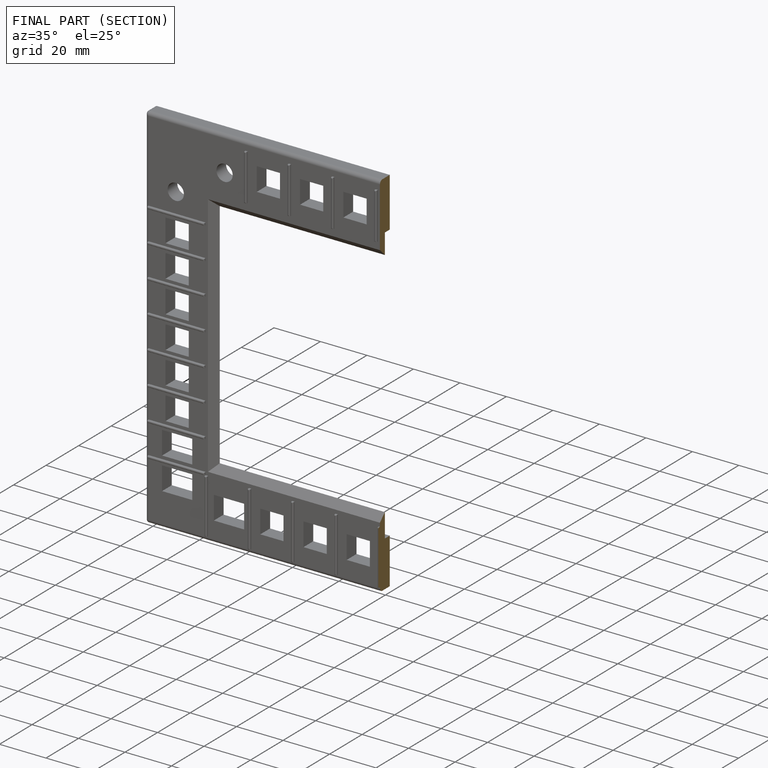
[diagram: finished part — half-section view (interior)]
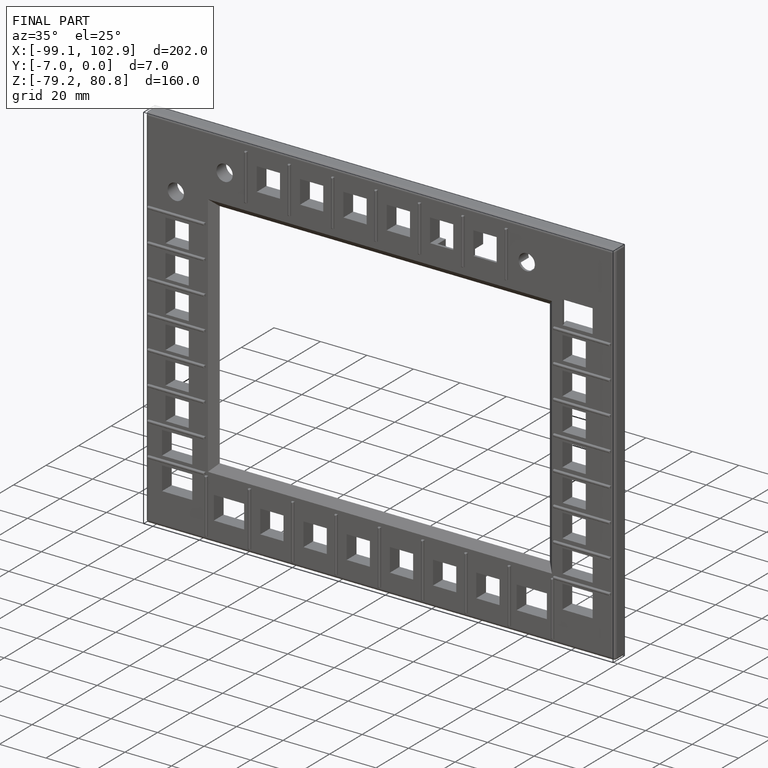
[diagram: finished part — iso view with bounding-box wireframe]
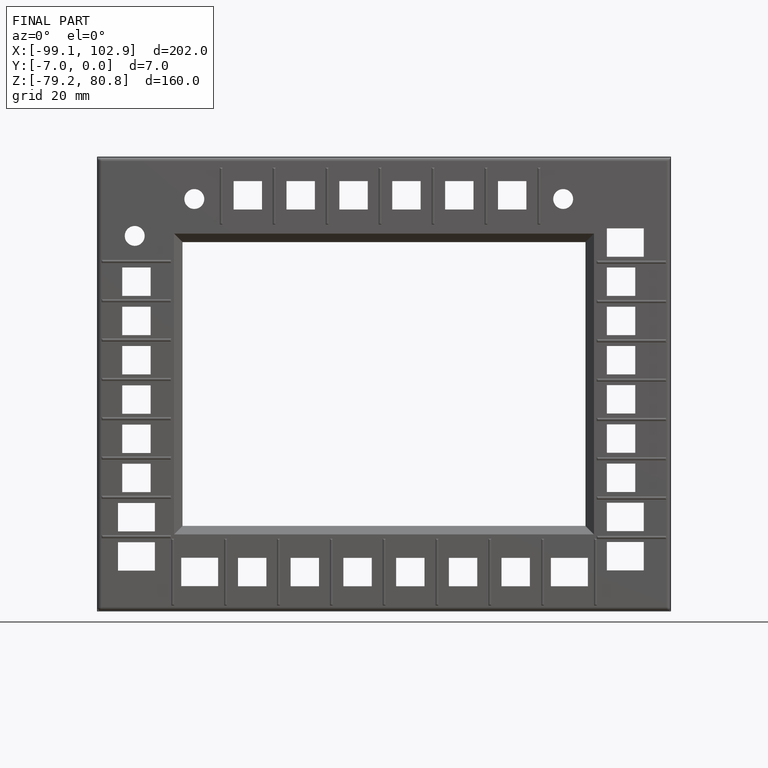
[diagram: finished part — front view with bounding-box wireframe]
